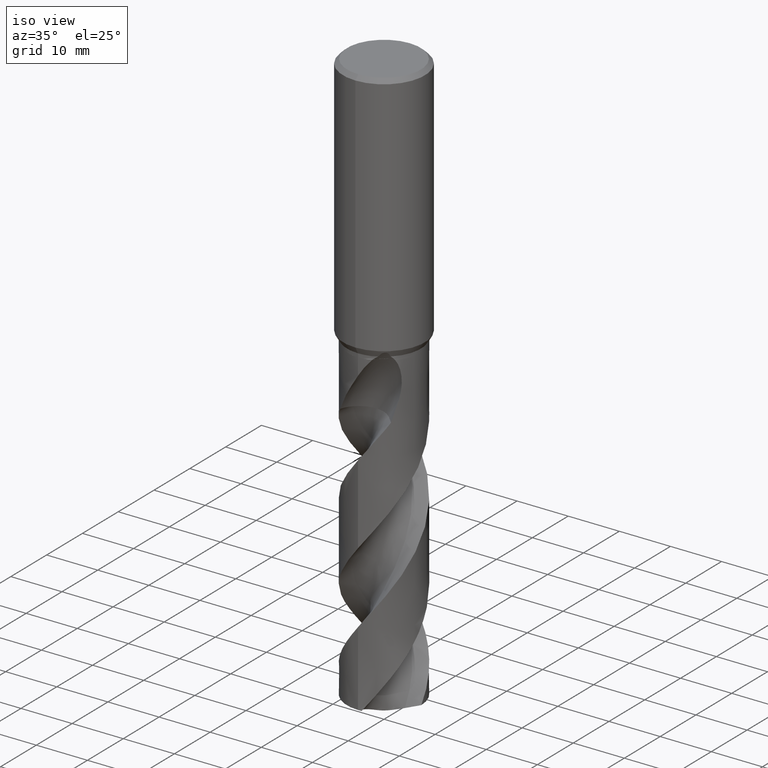
[diagram: clean part render]
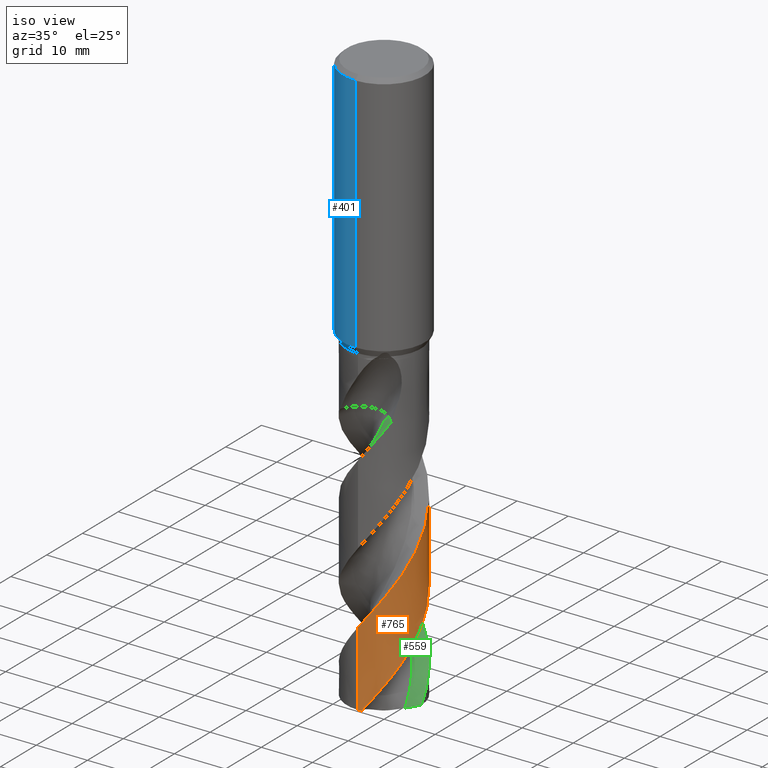
[diagram: same view with three faces highlighted in distinct colors, each labeled with its STEP entity id]
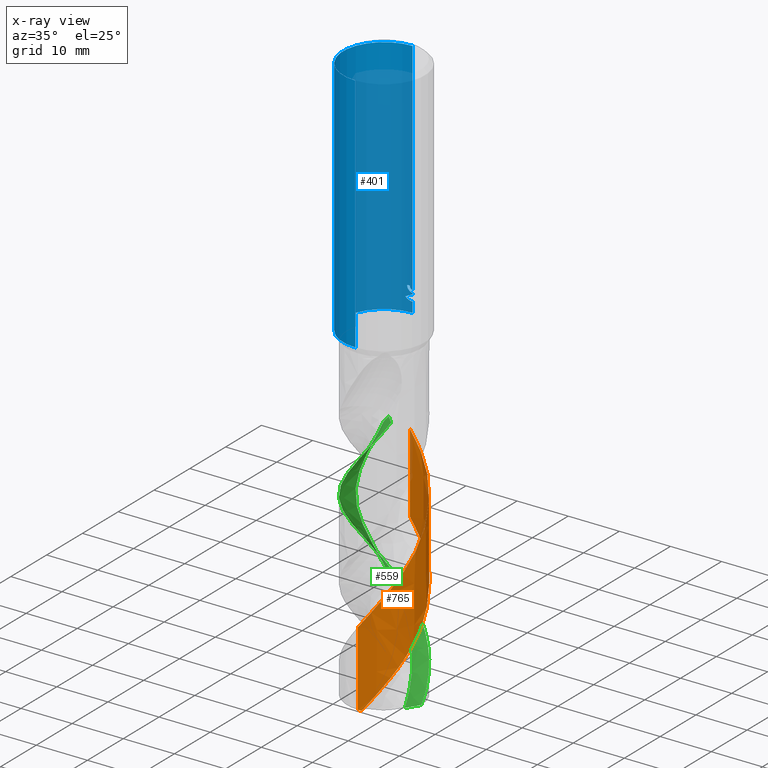
[diagram: x-ray of the same camera — body ghosted, the three highlighted faces saturated]
A machine part, iso view with three faces highlighted in distinct colors.
The next image is the same camera in x-ray (body ghosted, the three faces saturated) — at least one of them is partly hidden behind the body in this view.
Their STEP definitions:

[orange] entity #765 — the highlighted conical surface has half-angle 0 deg.
#339=VERTEX_POINT('',#877);
#363=VERTEX_POINT('',#903);
#389=EDGE_CURVE('',#339,#409,#932,.T.);
#409=VERTEX_POINT('',#954);
#473=EDGE_CURVE('',#721,#589,#1023,.T.);
#589=VERTEX_POINT('',#1143);
#597=EDGE_CURVE('',#339,#363,#1152,.T.);
#633=EDGE_CURVE('',#409,#589,#1190,.T.);
#709=EDGE_CURVE('',#721,#363,#1278,.T.);
#721=VERTEX_POINT('',#1291);
#765=ADVANCED_FACE('',(#1340),#1341,.T.);
#877=CARTESIAN_POINT('',(0.690855671745082,-7.21700896776619,-112.36121580157));
#903=CARTESIAN_POINT('',(2.27820117841889E-013,7.24995412114484,-83.7506039292155));
#932=CIRCLE('',#1912,7.25);
#954=CARTESIAN_POINT('',(8.92201552602258E-016,-7.25,-112.36121580157));
#1023=B_SPLINE_CURVE_WITH_KNOTS('',3,(#2204,#2205,#2206,#2207,#2208,#2209,#2210,#2211,#2212,#2213,#2214,#2215,#2216,#2217,#2218,#2219,#2220,#2221,#2222,#2223,#2224,#2225,#2226,#2227,#2228,#2229,#2230,#2231,#2232,#2233,#2234,#2235,#2236,#2237,#2238,#2239,#2240,#2241,#2242,#2243,#2244,#2245,#2246,#2247,#2248,#2249,#2250,#2251,#2252,#2253,#2254,#2255,#2256,#2257,#2258,#2259,#2260,#2261,#2262,#2263,#2264,#2265,#2266,#2267,#2268,#2269,#2270,#2271,#2272,#2273,#2274,#2275,#2276,#2277,#2278,#2279,#2280,#2281,#2282,#2283,#2284,#2285,#2286,#2287,#2288,#2289),.UNSPECIFIED.,.F.,.F.,(4,2,2,2,2,2,2,2,2,2,2,2,2,2,2,2,2,2,2,2,2,2,2,2,2,2,2,2,2,2,2,2,2,2,2,2,2,2,2,2,2,2,4),(0.0,0.210304086068038,0.313889300572054,1.17769250985621,1.45903104223533,1.63367837192866,1.79402820930286,2.00354779692082,2.24073834741856,3.21709693872684,4.03022999357826,4.85236997812291,9.74286510770527,11.5861094006077,13.4231701224091,15.2566048118957,16.1779645443521,17.0852041954248,20.37727008698,21.2853509247081,24.702049685947,25.6025506709767,29.2168676147197,29.2659692492197,32.0854973560678,33.0057548473173,33.9090215431491,37.5215579439481,37.6207092248995,40.4682156132015,42.3061179258814,44.1300999114018,45.0517586616111,46.8725099501984,48.7034915821564,49.6233584522628,50.4733182771852,53.6710115201527,54.8835445597027,57.0174875052557,60.2314967113286,61.8397313497389,63.4502532120235),.UNSPECIFIED.);
#1143=CARTESIAN_POINT('',(6.0398142667226E-014,-7.24997650128769,-97.7071331038101));
#1152=B_SPLINE_CURVE_WITH_KNOTS('',3,(#3632,#3633,#3634,#3635,#3636,#3637,#3638,#3639,#3640,#3641,#3642,#3643,#3644,#3645,#3646,#3647,#3648,#3649,#3650,#3651,#3652,#3653,#3654,#3655,#3656,#3657,#3658,#3659,#3660,#3661,#3662,#3663,#3664,#3665,#3666,#3667,#3668,#3669,#3670,#3671,#3672,#3673,#3674,#3675,#3676,#3677,#3678,#3679,#3680,#3681,#3682,#3683,#3684,#3685,#3686,#3687,#3688,#3689,#3690,#3691,#3692,#3693,#3694,#3695,#3696,#3697,#3698,#3699,#3700,#3701,#3702,#3703,#3704,#3705,#3706,#3707,#3708,#3709,#3710,#3711),.UNSPECIFIED.,.F.,.F.,(4,2,2,2,2,2,2,2,2,2,2,2,2,2,2,2,2,2,2,2,2,2,2,2,2,2,2,2,2,2,2,2,2,2,2,2,2,2,2,4),(0.0,1.89630091735271,3.54769438117396,6.23149635100796,7.9277649123938,8.87014856560747,10.1715284059933,12.8367731521679,14.1466410984459,17.7694263827033,18.2399507950682,22.108226263483,22.5791725981165,24.7011109531099,27.8436731671682,30.5580534895705,31.4112634065993,34.7687335778452,35.5468671292838,38.4004853594342,40.8946037696711,43.4027941907401,44.2312393576209,47.1084500815723,48.5084922544913,52.3117093416515,52.5165477494234,55.5510286134803,57.8097966749533,59.2349505615318,60.6003071453903,61.459676013462,62.8535724450805,63.1158260891668,63.1234531118705,63.2182455043556,63.3070749242383,63.4268241035185,63.6805968346564,63.9496781646283),.UNSPECIFIED.);
#1190=LINE('',#4429,#4430);
#1278=LINE('',#4794,#4795);
#1291=CARTESIAN_POINT('',(5.14588395460916E-011,7.24992918673921,-68.2012054276744));
#1340=FACE_OUTER_BOUND('',#5113,.T.);
#1341=CONICAL_SURFACE('',#5114,7.24995,1.60356078235992E-006);
#1912=AXIS2_PLACEMENT_3D('',#5435,#5436,#5437);
#2204=CARTESIAN_POINT('',(-5.03925244964702,5.21222023289111,-60.967));
#2205=CARTESIAN_POINT('',(-5.00978032259487,5.24071445280259,-61.0238654035077));
#2206=CARTESIAN_POINT('',(-4.98001545065386,5.26900855825968,-61.0807222525962));
#2207=CARTESIAN_POINT('',(-4.93508598126302,5.31099310713471,-61.1654883244664));
#2208=CARTESIAN_POINT('',(-4.92018318821538,5.3248025396834,-61.1934351608689));
#2209=CARTESIAN_POINT('',(-4.78018743706196,5.45343406677269,-61.4542667280388));
#2210=CARTESIAN_POINT('',(-4.65225499856575,5.56317035469051,-61.6796032584946));
#2211=CARTESIAN_POINT('',(-4.46955953417852,5.70855994882845,-61.9824310825085));
#2212=CARTESIAN_POINT('',(-4.42411606003495,5.74385585144123,-62.0563851175809));
#2213=CARTESIAN_POINT('',(-4.34931296940008,5.80052599153234,-62.1761990372448));
#2214=CARTESIAN_POINT('',(-4.32045246482374,5.8220552725498,-62.2219772066587));
#2215=CARTESIAN_POINT('',(-4.2646478975406,5.86303785207892,-62.3097502759366));
#2216=CARTESIAN_POINT('',(-4.23777427293628,5.8824918254398,-62.3516948411593));
#2217=CARTESIAN_POINT('',(-4.17539396939021,5.92699830811542,-62.4484376650187));
#2218=CARTESIAN_POINT('',(-4.13981832280978,5.95190152271035,-62.5031532105936));
#2219=CARTESIAN_POINT('',(-4.06347491906114,6.0043261945157,-62.6198908579395));
#2220=CARTESIAN_POINT('',(-4.02226880662331,6.03201518905053,-62.6824893348627));
#2221=CARTESIAN_POINT('',(-3.80808420708147,6.17271053085674,-63.0074907877998));
#2222=CARTESIAN_POINT('',(-3.6320579353278,6.2778116001873,-63.2719416592026));
#2223=CARTESIAN_POINT('',(-3.30413384336195,6.45544633741225,-63.7557151753485));
#2224=CARTESIAN_POINT('',(-3.15241749475409,6.53087416683658,-63.9762509355296));
#2225=CARTESIAN_POINT('',(-2.84233549253286,6.67171878412406,-64.4188480549434));
#2226=CARTESIAN_POINT('',(-2.683884558774,6.73702820156188,-64.6409738385749));
#2227=CARTESIAN_POINT('',(-1.56704520395329,7.15163767079486,-66.1854572976499));
#2228=CARTESIAN_POINT('',(-0.546381689224195,7.30093309813714,-67.4911087097356));
#2229=CARTESIAN_POINT('',(0.855287696597667,7.20956447343906,-69.3112709571276));
#2230=CARTESIAN_POINT('',(1.23645842734804,7.15406628411371,-69.8080358404676));
#2231=CARTESIAN_POINT('',(1.98532479976608,6.98333811173469,-70.8025191963202));
#2232=CARTESIAN_POINT('',(2.35159482375386,6.86864304471706,-71.2981473837041));
#2233=CARTESIAN_POINT('',(3.06154975723793,6.58290308765196,-72.2905676496827));
#2234=CARTESIAN_POINT('',(3.40449073148484,6.41228599405501,-72.7856486837778));
#2235=CARTESIAN_POINT('',(3.89733182311947,6.11632002389168,-73.5301170078809));
#2236=CARTESIAN_POINT('',(4.05819030991086,6.01079765511617,-73.7789329002379));
#2237=CARTESIAN_POINT('',(4.36878878446355,5.78888312935204,-74.2729975676904));
#2238=CARTESIAN_POINT('',(4.51845985283313,5.67282740328935,-74.5178979327166));
#2239=CARTESIAN_POINT('',(5.18930558515622,5.10925979910406,-75.6530310030177));
#2240=CARTESIAN_POINT('',(5.65000640212918,4.59472614938845,-76.5397428304614));
#2241=CARTESIAN_POINT('',(6.13659951226946,3.86520175119183,-77.6748695886487));
#2242=CARTESIAN_POINT('',(6.23553774514878,3.70346788405186,-77.9200731453436));
#2243=CARTESIAN_POINT('',(6.67594841052528,2.91577682718396,-79.0894224917502));
#2244=CARTESIAN_POINT('',(6.93034809408869,2.24523389448378,-80.0092469538378));
#2245=CARTESIAN_POINT('',(7.12286841228285,1.36450756422604,-81.1762187256363));
#2246=CARTESIAN_POINT('',(7.15584647494383,1.1793868406203,-81.4194903322334));
#2247=CARTESIAN_POINT('',(7.28492150888956,0.246132877337394,-82.6405280723853));
#2248=CARTESIAN_POINT('',(7.27106786706407,-0.512889161394252,-83.6123523335919));
#2249=CARTESIAN_POINT('',(7.13851407268235,-1.26632402727727,-84.6027592459127));
#2250=CARTESIAN_POINT('',(7.13671593143104,-1.27641910978059,-84.6160345813648));
#2251=CARTESIAN_POINT('',(7.03041107444194,-1.86598531294295,-85.3916921490346));
#2252=CARTESIAN_POINT('',(6.85568297125118,-2.43069692060217,-86.1532991426464));
#2253=CARTESIAN_POINT('',(6.5359232574471,-3.14333642835609,-87.1647623290453));
#2254=CARTESIAN_POINT('',(6.4502879727046,-3.31551879091895,-87.4134849070393));
#2255=CARTESIAN_POINT('',(6.26721580806802,-3.64959519363695,-87.906603303182));
#2256=CARTESIAN_POINT('',(6.17014470144677,-3.81140552940182,-88.1507065770188));
#2257=CARTESIAN_POINT('',(5.65400065581019,-4.60033106273446,-89.3725130694309));
#2258=CARTESIAN_POINT('',(5.14493107937477,-5.16345540468369,-90.3443733442808));
#2259=CARTESIAN_POINT('',(4.54191611932174,-5.65096792276379,-91.3482591836186));
#2260=CARTESIAN_POINT('',(4.52575155468365,-5.66392213874879,-91.3750770243107));
#2261=CARTESIAN_POINT('',(4.04372314910618,-6.04683666267322,-92.1721905807555));
#2262=CARTESIAN_POINT('',(3.53401619677952,-6.35820744518144,-92.9415852553302));
#2263=CARTESIAN_POINT('',(2.64224387598876,-6.76225630307014,-94.2093158161248));
#2264=CARTESIAN_POINT('',(2.28051350208002,-6.89265398604684,-94.7051447788316));
#2265=CARTESIAN_POINT('',(1.54276949694519,-7.09415835730621,-95.6963397127303));
#2266=CARTESIAN_POINT('',(1.16788603193666,-7.16542915734826,-96.1897309556141));
#2267=CARTESIAN_POINT('',(0.597679973497552,-7.22786246783568,-96.9328194624062));
#2268=CARTESIAN_POINT('',(0.405472963351331,-7.24119099330561,-97.1820981628603));
#2269=CARTESIAN_POINT('',(-0.167468378587188,-7.25802587988113,-97.9241156323138));
#2270=CARTESIAN_POINT('',(-0.547972859381524,-7.23923144685861,-98.4158013635568));
#2271=CARTESIAN_POINT('',(-1.30432438387185,-7.14192804911449,-99.4044314520633));
#2272=CARTESIAN_POINT('',(-1.67924894926922,-7.06319678615775,-99.8995024371183));
#2273=CARTESIAN_POINT('',(-2.23075354089554,-6.90093623152792,-100.643932486617));
#2274=CARTESIAN_POINT('',(-2.41296497150638,-6.83935718934259,-100.892694828104));
#2275=CARTESIAN_POINT('',(-2.75845919443946,-6.70706452478027,-101.371566670569));
#2276=CARTESIAN_POINT('',(-2.9219267451921,-6.63747874904157,-101.601377713337));
#2277=CARTESIAN_POINT('',(-3.68728840096915,-6.27793405405267,-102.697129486209));
#2278=CARTESIAN_POINT('',(-4.25006538415194,-5.9115288417428,-103.559762911374));
#2279=CARTESIAN_POINT('',(-4.94611725419794,-5.30683611643249,-104.7533410491));
#2280=CARTESIAN_POINT('',(-5.12855922103803,-5.13072926671643,-105.081179359573));
#2281=CARTESIAN_POINT('',(-5.60547262317071,-4.61950056443287,-105.987326372979));
#2282=CARTESIAN_POINT('',(-5.87897982743365,-4.2660276462736,-106.564302659856));
#2283=CARTESIAN_POINT('',(-6.47880726490072,-3.32249083881919,-108.011904827705));
#2284=CARTESIAN_POINT('',(-6.75855510992129,-2.70831588518962,-108.877780710645));
#2285=CARTESIAN_POINT('',(-7.0454077725077,-1.74284451162384,-110.183842850782));
#2286=CARTESIAN_POINT('',(-7.1186281028942,-1.4144416542381,-110.618740213666));
#2287=CARTESIAN_POINT('',(-7.21905796830596,-0.749036288058498,-111.489988637319));
#2288=CARTESIAN_POINT('',(-7.24605550667662,-0.412987986016026,-111.925291151945));
#2289=CARTESIAN_POINT('',(-7.24959877841542,-0.0762728785188047,-112.36121580157));
#3632=CARTESIAN_POINT('',(0.690855671745028,-7.21700896776624,-112.36121580157));
#3633=CARTESIAN_POINT('',(1.07478093569116,-7.18025651678191,-111.860414997235));
#3634=CARTESIAN_POINT('',(1.45582040271712,-7.11285685876501,-111.359141338366));
#3635=CARTESIAN_POINT('',(2.15615669761477,-6.93014784611491,-110.423124138476));
#3636=CARTESIAN_POINT('',(2.4759478541789,-6.82244970830412,-109.989097614131));
#3637=CARTESIAN_POINT('',(3.29308692225439,-6.48215100091732,-108.846004808539));
#3638=CARTESIAN_POINT('',(3.77262458678795,-6.21516518865268,-108.134728070527));
#3639=CARTESIAN_POINT('',(4.49801705685512,-5.69644533401351,-106.978803344006));
#3640=CARTESIAN_POINT('',(4.76442916645895,-5.47560226621703,-106.532991371262));
#3641=CARTESIAN_POINT('',(5.1530445939215,-5.10347008482161,-105.83737280746));
#3642=CARTESIAN_POINT('',(5.28636911378245,-4.96522240671631,-105.589113167569));
#3643=CARTESIAN_POINT('',(5.59010691004947,-4.62419628046977,-104.996939999945));
#3644=CARTESIAN_POINT('',(5.75513646648046,-4.4171118468074,-104.652303309101));
#3645=CARTESIAN_POINT('',(6.22295516952847,-3.75917126416486,-103.60537103677));
#3646=CARTESIAN_POINT('',(6.48674761482229,-3.28313746237946,-102.908563950209));
#3647=CARTESIAN_POINT('',(6.79737293482078,-2.53557386105355,-101.860237746202));
#3648=CARTESIAN_POINT('',(6.88589691630531,-2.28414579353494,-101.513554753141));
#3649=CARTESIAN_POINT('',(7.16601775934855,-1.32319499015716,-100.213263554258));
#3650=CARTESIAN_POINT('',(7.26311610141532,-0.590705523703008,-99.2745360403363));
#3651=CARTESIAN_POINT('',(7.24666136239555,0.239106487728957,-98.1960208461325));
#3652=CARTESIAN_POINT('',(7.2428925136278,0.334301027710691,-98.0719398247871));
#3653=CARTESIAN_POINT('',(7.1908408451487,1.21150456469685,-96.9293523965711));
#3654=CARTESIAN_POINT('',(7.01805756006925,1.98043699373308,-95.9302592937169));
#3655=CARTESIAN_POINT('',(6.69010901274485,2.79528547041986,-94.7885434768218));
#3656=CARTESIAN_POINT('',(6.65282523468455,2.88289650458178,-94.6645266841801));
#3657=CARTESIAN_POINT('',(6.437828637473,3.36168400096509,-93.9822206494445));
#3658=CARTESIAN_POINT('',(6.22712295739907,3.73775636691847,-93.4273355969169));
#3659=CARTESIAN_POINT('',(5.6232597790435,4.6204487999856,-92.0453979389771));
#3660=CARTESIAN_POINT('',(5.19503382259543,5.09709079626862,-91.2180349612399));
#3661=CARTESIAN_POINT('',(4.29148048320745,5.86929232007242,-89.6793988444049));
#3662=CARTESIAN_POINT('',(3.83372030502354,6.17791498202587,-88.9728785879474));
#3663=CARTESIAN_POINT('',(3.1928731175095,6.51132420577489,-88.0347100434697));
#3664=CARTESIAN_POINT('',(3.03696374488938,6.58548913169519,-87.8098419320283));
#3665=CARTESIAN_POINT('',(2.25391059705294,6.92420306512297,-86.7021158248767));
#3666=CARTESIAN_POINT('',(1.59486847771545,7.10498248787212,-85.8317864607844));
#3667=CARTESIAN_POINT('',(0.763957388806669,7.21131537341783,-84.7444507671175));
#3668=CARTESIAN_POINT('',(0.607249805635352,7.22619315507974,-84.5394309320998));
#3669=CARTESIAN_POINT('',(-0.125840730277471,7.27180018087809,-83.5850115651822));
#3670=CARTESIAN_POINT('',(-0.704597710125536,7.23877852633658,-82.8431795086216));
#3671=CARTESIAN_POINT('',(-1.77168282317266,7.04829723905724,-81.4405107590108));
#3672=CARTESIAN_POINT('',(-2.25838938711356,6.90775310230232,-80.7832920817758));
#3673=CARTESIAN_POINT('',(-3.19794105148455,6.52636273497545,-79.4712683235558));
#3674=CARTESIAN_POINT('',(-3.64711919127317,6.28630058782807,-78.8185240486239));
#3675=CARTESIAN_POINT('',(-4.2057658645795,5.90773282181933,-77.9423907441475));
#3676=CARTESIAN_POINT('',(-4.34099474660977,5.80908898766683,-77.7243798025566));
#3677=CARTESIAN_POINT('',(-4.93063713827564,5.34685828293841,-76.751333945019));
#3678=CARTESIAN_POINT('',(-5.34387673051808,4.93397253843565,-76.0040802566229));
#3679=CARTESIAN_POINT('',(-5.87856195244498,4.25258880087396,-74.8826384412675));
#3680=CARTESIAN_POINT('',(-6.0400841547677,4.01979576231583,-74.5141886239056));
#3681=CARTESIAN_POINT('',(-6.58713542907161,3.12406379025702,-73.1505951565345));
#3682=CARTESIAN_POINT('',(-6.88030150801894,2.4105161269863,-72.1725184561015));
#3683=CARTESIAN_POINT('',(-7.06576053134567,1.62427636030065,-71.1227732596202));
#3684=CARTESIAN_POINT('',(-7.07488614488841,1.58405455596913,-71.06912827708));
#3685=CARTESIAN_POINT('',(-7.21384039848491,0.946434382724993,-70.2208891077177));
#3686=CARTESIAN_POINT('',(-7.26812813017476,0.334149460930205,-69.4321594515262));
#3687=CARTESIAN_POINT('',(-7.22705226603809,-0.734460272692811,-68.0485051301318));
#3688=CARTESIAN_POINT('',(-7.16653360183727,-1.18744106962642,-67.4564587233165));
#3689=CARTESIAN_POINT('',(-6.9992329708829,-1.91177404393148,-66.4930000927242));
#3690=CARTESIAN_POINT('',(-6.91778744270278,-2.18832839652102,-66.1202593192523));
#3691=CARTESIAN_POINT('',(-6.72625024543268,-2.71942540356861,-65.3916585568651));
#3692=CARTESIAN_POINT('',(-6.61759920473345,-2.97416089349818,-65.0363240044165));
#3693=CARTESIAN_POINT('',(-6.41681938173198,-3.37879577051982,-64.4567452236287));
#3694=CARTESIAN_POINT('',(-6.33367454980682,-3.53221788832868,-64.2342557528058));
#3695=CARTESIAN_POINT('',(-6.10061571418525,-3.92739110918271,-63.6363355773941));
#3696=CARTESIAN_POINT('',(-5.94605965300424,-4.1566702914547,-63.2653284074083));
#3697=CARTESIAN_POINT('',(-5.75361245838756,-4.41133159628401,-62.812091550147));
#3698=CARTESIAN_POINT('',(-5.72293982998552,-4.45104349707937,-62.7401040004496));
#3699=CARTESIAN_POINT('',(-5.69118533867852,-4.49129781304277,-62.6657253163084));
#3700=CARTESIAN_POINT('',(-5.68938982786555,-4.49357361177471,-62.6615167335701));
#3701=CARTESIAN_POINT('',(-5.65606270435072,-4.53572160099142,-62.5837946869642));
#3702=CARTESIAN_POINT('',(-5.6241610839234,-4.57524328797141,-62.5127142380929));
#3703=CARTESIAN_POINT('',(-5.56010691791475,-4.65283979535652,-62.3764522044621));
#3704=CARTESIAN_POINT('',(-5.52815121214044,-4.69078232845219,-62.3112980233945));
#3705=CARTESIAN_POINT('',(-5.45067890898868,-4.78080345039633,-62.1599320080411));
#3706=CARTESIAN_POINT('',(-5.40440625495664,-4.83309815367777,-62.0744656438664));
#3707=CARTESIAN_POINT('',(-5.25407895513992,-4.99789415024617,-61.8118953735858));
#3708=CARTESIAN_POINT('',(-5.14395807510183,-5.11157753911808,-61.6404099361161));
#3709=CARTESIAN_POINT('',(-4.89898363354335,-5.34713593839097,-61.2983699341276));
#3710=CARTESIAN_POINT('',(-4.76403948631274,-5.46811458029344,-61.1298934979058));
#3711=CARTESIAN_POINT('',(-4.61977415179415,-5.58739579713552,-60.967));
#4429=CARTESIAN_POINT('',(8.92195429570489E-016,-7.24995,-81.180607900785));
#4430=VECTOR('',#5639,1.0);
#4794=CARTESIAN_POINT('',(-8.8347153740842E-016,7.24995,-81.180607900785));
#4795=VECTOR('',#5782,1.0);
#5113=EDGE_LOOP('',(#5854,#5855,#5856,#5857,#5858));
#5114=AXIS2_PLACEMENT_3D('',#5859,#5860,#5861);
#5435=CARTESIAN_POINT('',(0.0,0.0,-112.36121580157));
#5436=DIRECTION('',(0.0,0.0,-1.0));
#5437=DIRECTION('',(0.0,1.0,0.0));
#5639=DIRECTION('',(-1.96373072281749E-022,1.60356078235923E-006,0.999999999998714));
#5782=DIRECTION('',(-1.96373072281749E-022,1.60356078235923E-006,-0.999999999998714));
#5854=ORIENTED_EDGE('',*,*,#709,.F.);
#5855=ORIENTED_EDGE('',*,*,#473,.T.);
#5856=ORIENTED_EDGE('',*,*,#633,.F.);
#5857=ORIENTED_EDGE('',*,*,#389,.F.);
#5858=ORIENTED_EDGE('',*,*,#597,.T.);
#5859=CARTESIAN_POINT('',(0.0,0.0,-81.180607900785));
#5860=DIRECTION('',(0.0,-0.0,-1.0));
#5861=DIRECTION('',(0.0,1.0,0.0));

[blue] entity #401 — the highlighted cylindrical surface (partial cylindrical patch) has radius 8 mm, axis along (-0, -0, 1).
#299=EDGE_CURVE('',#537,#451,#830,.T.);
#335=EDGE_CURVE('',#557,#739,#873,.T.);
#341=EDGE_CURVE('',#531,#443,#879,.T.);
#347=VERTEX_POINT('',#885);
#353=EDGE_CURVE('',#451,#557,#892,.T.);
#375=EDGE_CURVE('',#779,#531,#915,.T.);
#401=ADVANCED_FACE('',(#945),#946,.T.);
#423=VERTEX_POINT('',#970);
#433=VERTEX_POINT('',#982);
#443=VERTEX_POINT('',#992);
#451=VERTEX_POINT('',#1001);
#459=EDGE_CURVE('',#467,#769,#1009,.T.);
#467=VERTEX_POINT('',#1017);
#499=EDGE_CURVE('',#443,#423,#1049,.T.);
#517=EDGE_CURVE('',#739,#779,#1068,.T.);
#531=VERTEX_POINT('',#1082);
#537=VERTEX_POINT('',#1088);
#555=EDGE_CURVE('',#769,#347,#1106,.T.);
#557=VERTEX_POINT('',#1108);
#611=EDGE_CURVE('',#537,#433,#1167,.T.);
#613=EDGE_CURVE('',#347,#433,#1169,.T.);
#739=VERTEX_POINT('',#1311);
#741=EDGE_CURVE('',#423,#467,#1313,.T.);
#769=VERTEX_POINT('',#1345);
#779=VERTEX_POINT('',#1356);
#830=LINE('',#1404,#1405);
#873=LINE('',#1779,#1780);
#879=CIRCLE('',#1788,8.0);
#885=CARTESIAN_POINT('',(-7.24729156774638E-017,8.0,-46.0310253601033));
#892=CIRCLE('',#1818,8.0);
#915=B_SPLINE_CURVE_WITH_KNOTS('',3,(#1853,#1854,#1855,#1856,#1857,#1858,#1859,#1860,#1861,#1862,#1863,#1864,#1865,#1866,#1867,#1868,#1869,#1870,#1871,#1872,#1873,#1874,#1875,#1876,#1877,#1878,#1879),.UNSPECIFIED.,.F.,.F.,(4,2,3,2,2,2,2,2,2,2,2,2,4),(-0.5419285326464,-0.2709642663232,0.0,0.2709642663232,0.5419285326464,0.813116082096196,1.08430363154599,1.35512009221967,1.62593655289334,1.89686258809883,2.16778862330431,2.43871465850979,2.70964069371527),.UNSPECIFIED.);
#945=FACE_OUTER_BOUND('',#1928,.T.);
#946=CYLINDRICAL_SURFACE('',#1929,8.0);
#970=CARTESIAN_POINT('',(-1.59110438709803E-015,8.0,-44.5000801551882));
#982=CARTESIAN_POINT('',(0.0,8.0,-48.0));
#992=CARTESIAN_POINT('',(-1.0350734039088,7.93275633361574,-43.3171221986971));
#1001=CARTESIAN_POINT('',(9.79685083057902E-016,-8.0,-0.799999999999997));
#1009=ELLIPSE('',#2063,8.91942745634288,8.0);
#1017=CARTESIAN_POINT('',(1.83843752834743E-015,8.0,-44.7128911336578));
#1049=B_SPLINE_CURVE_WITH_KNOTS('',3,(#2371,#2372,#2373,#2374,#2375,#2376,#2377,#2378,#2379,#2380,#2381,#2382,#2383,#2384),.UNSPECIFIED.,.F.,.F.,(4,2,2,2,2,2,4),(3.12481205259249,3.57110974231005,4.01740743202762,4.46370512174518,4.90965496251245,5.35560480327972,5.80250994576287),.UNSPECIFIED.);
#1068=B_SPLINE_CURVE_WITH_KNOTS('',3,(#3034,#3035,#3036,#3037,#3038,#3039,#3040,#3041,#3042,#3043,#3044,#3045,#3046,#3047,#3048,#3049,#3050,#3051,#3052,#3053,#3054,#3055,#3056,#3057,#3058,#3059,#3060),.UNSPECIFIED.,.F.,.F.,(4,2,3,2,2,2,2,2,2,2,2,2,4),(-0.5419285326464,-0.2709642663232,0.0,0.2709642663232,0.5419285326464,0.813116082096196,1.08430363154599,1.35512009221967,1.62593655289334,1.89686258809883,2.16778862330431,2.43871465850979,2.70964069371527),.UNSPECIFIED.);
#1082=CARTESIAN_POINT('',(-0.562333990228013,7.98021180692807,-43.3171221986971));
#1088=CARTESIAN_POINT('',(9.79685083057902E-016,-8.0,-48.0));
#1106=B_SPLINE_CURVE_WITH_KNOTS('',3,(#3162,#3163,#3164,#3165,#3166,#3167,#3168,#3169,#3170,#3171,#3172,#3173,#3174,#3175,#3176,#3177),.UNSPECIFIED.,.F.,.F.,(4,2,2,2,2,2,2,4),(5.84590460773513,6.15359942935952,6.46135491269572,6.76911039603191,7.0768658793681,7.3846213627043,7.69220202210762,7.99978268151095),.UNSPECIFIED.);
#1108=CARTESIAN_POINT('',(0.0,8.0,-0.799999999999997));
#1167=CIRCLE('',#4374,8.0);
#1169=LINE('',#4377,#4378);
#1311=CARTESIAN_POINT('',(-9.11185746623598E-016,8.0,-44.0232688117743));
#1313=LINE('',#4980,#4981);
#1345=CARTESIAN_POINT('',(-1.337052752443,7.88747677886817,-45.3720803908795));
#1356=CARTESIAN_POINT('',(-0.486378944383043,7.98520103206305,-43.6432837483006));
#1404=CARTESIAN_POINT('',(9.79685083057902E-016,-8.0,-24.4));
#1405=VECTOR('',#5278,1.0);
#1779=CARTESIAN_POINT('',(-9.79685083057902E-016,8.0,-24.4));
#1780=VECTOR('',#5348,1.0);
#1788=AXIS2_PLACEMENT_3D('',#5352,#5353,#5354);
#1818=AXIS2_PLACEMENT_3D('',#5368,#5369,#5370);
#1853=CARTESIAN_POINT('',(0.664954599443552,7.97231681386778,-42.8134280485152));
#1854=CARTESIAN_POINT('',(0.728697309144575,7.96700016514617,-42.8771976298052));
#1855=CARTESIAN_POINT('',(0.783984970005959,7.96157817669746,-42.9579676288293));
#1856=CARTESIAN_POINT('',(0.857338729083105,7.95401344016708,-43.1350264032587));
#1857=CARTESIAN_POINT('',(0.875400981188567,7.9519603320272,-43.2313205904791));
#1858=CARTESIAN_POINT('',(0.875400981188567,7.9519603320272,-43.3216420125868));
#1859=CARTESIAN_POINT('',(0.875400981188567,7.9519603320272,-43.4119634346945));
#1860=CARTESIAN_POINT('',(0.857338729083105,7.95401344016708,-43.5082576219149));
#1861=CARTESIAN_POINT('',(0.783984970005959,7.96157817669746,-43.6853163963443));
#1862=CARTESIAN_POINT('',(0.728697309144575,7.96700016514617,-43.7660863953684));
#1863=CARTESIAN_POINT('',(0.601159363733413,7.97763784367611,-43.8936781061006));
#1864=CARTESIAN_POINT('',(0.520362377010846,7.9835511616299,-43.9490134763627));
#1865=CARTESIAN_POINT('',(0.343238271730281,7.99312539889087,-44.0224346019683));
#1866=CARTESIAN_POINT('',(0.246904936469423,7.99669990446128,-44.0405166027747));
#1867=CARTESIAN_POINT('',(0.0662715181116066,8.00023481827847,-44.0405166027747));
#1868=CARTESIAN_POINT('',(-0.0300046983202698,8.00043385807034,-44.0224788314126));
#1869=CARTESIAN_POINT('',(-0.207097636225057,7.99780924806332,-43.9491319808916));
#1870=CARTESIAN_POINT('',(-0.287916228308942,7.99507247117758,-43.8938243353674));
#1871=CARTESIAN_POINT('',(-0.415561608099308,7.98945501431132,-43.7662134499861));
#1872=CARTESIAN_POINT('',(-0.47089751346449,7.98621359896913,-43.6853869033816));
#1873=CARTESIAN_POINT('',(-0.544291654106699,7.9815473885346,-43.5082570304582));
#1874=CARTESIAN_POINT('',(-0.562348199187247,7.98021080566615,-43.4119506909886));
#1875=CARTESIAN_POINT('',(-0.562348199187247,7.98021080566615,-43.231333334185));
#1876=CARTESIAN_POINT('',(-0.544291654106699,7.9815473885346,-43.1350269947154));
#1877=CARTESIAN_POINT('',(-0.47089751346449,7.98621359896913,-42.9578971217919));
#1878=CARTESIAN_POINT('',(-0.415561608099308,7.98945501431132,-42.8770705751875));
#1879=CARTESIAN_POINT('',(-0.351726009227227,7.99226431084665,-42.8132522270084));
#1928=EDGE_LOOP('',(#5459,#5460,#5461,#5462,#5463,#5464,#5465,#5466,#5467,#5468,#5469,#5470));
#1929=AXIS2_PLACEMENT_3D('',#5471,#5472,#5473);
#2063=AXIS2_PLACEMENT_3D('',#5530,#5531,#5532);
#2371=CARTESIAN_POINT('',(-0.944913575683947,7.94400014693405,-42.8732243363802));
#2372=CARTESIAN_POINT('',(-1.00533761441092,7.93681290047907,-43.0189735840866));
#2373=CARTESIAN_POINT('',(-1.03510901790186,7.93275168658759,-43.1775359641603));
#2374=CARTESIAN_POINT('',(-1.03510901790186,7.93275168658759,-43.4750677573053));
#2375=CARTESIAN_POINT('',(-1.00533761441092,7.93681290047907,-43.633630137379));
#2376=CARTESIAN_POINT('',(-0.884489536956978,7.95118739338903,-43.9251286327918));
#2377=CARTESIAN_POINT('',(-0.793422036282065,7.96125577113215,-44.0580805760962));
#2378=CARTESIAN_POINT('',(-0.583459122055651,7.97939033505077,-44.2679445706327));
#2379=CARTESIAN_POINT('',(-0.450537469697416,7.98863404330231,-44.3589298612103));
#2380=CARTESIAN_POINT('',(-0.15914754302441,7.99974561772846,-44.4796463278531));
#2381=CARTESIAN_POINT('',(-0.00066677009490626,8.00138090345271,-44.5093686300866));
#2382=CARTESIAN_POINT('',(0.296900652438527,7.99587653613211,-44.5093686300866));
#2383=CARTESIAN_POINT('',(0.455528663688589,7.98835734013009,-44.4795323205785));
#2384=CARTESIAN_POINT('',(0.601263712829537,7.9773731232552,-44.4190784555264));
#3034=CARTESIAN_POINT('',(0.664954599443552,7.97231681386778,-42.8134280485152));
#3035=CARTESIAN_POINT('',(0.728697309144575,7.96700016514617,-42.8771976298052));
#3036=CARTESIAN_POINT('',(0.783984970005959,7.96157817669746,-42.9579676288293));
#3037=CARTESIAN_POINT('',(0.857338729083105,7.95401344016708,-43.1350264032587));
#3038=CARTESIAN_POINT('',(0.875400981188567,7.9519603320272,-43.2313205904791));
#3039=CARTESIAN_POINT('',(0.875400981188567,7.9519603320272,-43.3216420125868));
#3040=CARTESIAN_POINT('',(0.875400981188567,7.9519603320272,-43.4119634346945));
#3041=CARTESIAN_POINT('',(0.857338729083105,7.95401344016708,-43.5082576219149));
#3042=CARTESIAN_POINT('',(0.783984970005959,7.96157817669746,-43.6853163963443));
#3043=CARTESIAN_POINT('',(0.728697309144575,7.96700016514617,-43.7660863953684));
#3044=CARTESIAN_POINT('',(0.601159363733413,7.97763784367611,-43.8936781061006));
#3045=CARTESIAN_POINT('',(0.520362377010846,7.9835511616299,-43.9490134763627));
#3046=CARTESIAN_POINT('',(0.343238271730281,7.99312539889087,-44.0224346019683));
#3047=CARTESIAN_POINT('',(0.246904936469423,7.99669990446128,-44.0405166027747));
#3048=CARTESIAN_POINT('',(0.0662715181116066,8.00023481827847,-44.0405166027747));
#3049=CARTESIAN_POINT('',(-0.0300046983202698,8.00043385807034,-44.0224788314126));
#3050=CARTESIAN_POINT('',(-0.207097636225057,7.99780924806332,-43.9491319808916));
#3051=CARTESIAN_POINT('',(-0.287916228308942,7.99507247117758,-43.8938243353674));
#3052=CARTESIAN_POINT('',(-0.415561608099308,7.98945501431132,-43.7662134499861));
#3053=CARTESIAN_POINT('',(-0.47089751346449,7.98621359896913,-43.6853869033816));
#3054=CARTESIAN_POINT('',(-0.544291654106699,7.9815473885346,-43.5082570304582));
#3055=CARTESIAN_POINT('',(-0.562348199187247,7.98021080566615,-43.4119506909886));
#3056=CARTESIAN_POINT('',(-0.562348199187247,7.98021080566615,-43.231333334185));
#3057=CARTESIAN_POINT('',(-0.544291654106699,7.9815473885346,-43.1350269947154));
#3058=CARTESIAN_POINT('',(-0.47089751346449,7.98621359896913,-42.9578971217919));
#3059=CARTESIAN_POINT('',(-0.415561608099308,7.98945501431132,-42.8770705751875));
#3060=CARTESIAN_POINT('',(-0.351726009227227,7.99226431084665,-42.8132522270084));
#3162=CARTESIAN_POINT('',(-1.37965989409101,7.88013569531876,-45.3117516854175));
#3163=CARTESIAN_POINT('',(-1.3199289256702,7.89059343674534,-45.4005322669916));
#3164=CARTESIAN_POINT('',(-1.25220482221876,7.90172765643501,-45.4820341223787));
#3165=CARTESIAN_POINT('',(-1.107952172922,7.92324182089716,-45.6263077447315));
#3166=CARTESIAN_POINT('',(-1.02644372997692,7.93438131532357,-45.694054819207));
#3167=CARTESIAN_POINT('',(-0.848862462231446,7.95533947157086,-45.8135583581366));
#3168=CARTESIAN_POINT('',(-0.752792760365746,7.96513819479128,-45.8653229590247));
#3169=CARTESIAN_POINT('',(-0.552233007873722,7.9815513596031,-45.9485362190328));
#3170=CARTESIAN_POINT('',(-0.447578035759424,7.98816541907638,-45.9800508802037));
#3171=CARTESIAN_POINT('',(-0.236935963609582,7.99718539298489,-46.0214239066938));
#3172=CARTESIAN_POINT('',(-0.130946685762249,7.99958603183741,-46.0312723335086));
#3173=CARTESIAN_POINT('',(0.074164072792245,8.00031320966596,-46.0312723335086));
#3174=CARTESIAN_POINT('',(0.180109755406485,7.99866619075415,-46.0214348948015));
#3175=CARTESIAN_POINT('',(0.390692067401577,7.99114885755329,-45.9800916357112));
#3176=CARTESIAN_POINT('',(0.495330794510019,7.98528384147368,-45.9485955375336));
#3177=CARTESIAN_POINT('',(0.595603341302621,7.97779773244654,-45.9070064177945));
#4374=AXIS2_PLACEMENT_3D('',#5624,#5625,#5626);
#4377=CARTESIAN_POINT('',(-9.79685083057902E-016,8.0,-24.4));
#4378=VECTOR('',#5627,1.0);
#4980=CARTESIAN_POINT('',(-9.79685083057902E-016,8.0,-24.4));
#4981=VECTOR('',#5812,1.0);
#5278=DIRECTION('',(-0.0,-0.0,1.0));
#5348=DIRECTION('',(0.0,0.0,-1.0));
#5352=CARTESIAN_POINT('',(0.0,0.0,-43.3171221986971));
#5353=DIRECTION('',(0.0,-0.0,1.0));
#5354=DIRECTION('',(0.0,1.0,0.0));
#5368=CARTESIAN_POINT('',(0.0,0.0,-0.799999999999997));
#5369=DIRECTION('',(0.0,0.0,-1.0));
#5370=DIRECTION('',(0.0,1.0,0.0));
#5459=ORIENTED_EDGE('',*,*,#335,.T.);
#5460=ORIENTED_EDGE('',*,*,#517,.T.);
#5461=ORIENTED_EDGE('',*,*,#375,.T.);
#5462=ORIENTED_EDGE('',*,*,#341,.T.);
#5463=ORIENTED_EDGE('',*,*,#499,.T.);
#5464=ORIENTED_EDGE('',*,*,#741,.T.);
#5465=ORIENTED_EDGE('',*,*,#459,.T.);
#5466=ORIENTED_EDGE('',*,*,#555,.T.);
#5467=ORIENTED_EDGE('',*,*,#613,.T.);
#5468=ORIENTED_EDGE('',*,*,#611,.F.);
#5469=ORIENTED_EDGE('',*,*,#299,.T.);
#5470=ORIENTED_EDGE('',*,*,#353,.T.);
#5471=CARTESIAN_POINT('',(0.0,0.0,-24.4));
#5472=DIRECTION('',(-0.0,-0.0,1.0));
#5473=DIRECTION('',(0.0,1.0,0.0));
#5530=CARTESIAN_POINT('',(0.0,0.0,-44.7128911336578));
#5531=DIRECTION('',(-0.442195774284071,0.0,0.896918556617774));
#5532=DIRECTION('',(0.896918556617774,-0.0,0.442195774284071));
#5624=CARTESIAN_POINT('',(0.0,0.0,-48.0));
#5625=DIRECTION('',(0.0,0.0,-1.0));
#5626=DIRECTION('',(0.0,1.0,0.0));
#5627=DIRECTION('',(0.0,0.0,-1.0));
#5812=DIRECTION('',(0.0,0.0,-1.0));

[green] entity #559 — the highlighted face is a freeform B-spline surface patch.
#301=EDGE_CURVE('',#735,#381,#832,.T.);
#311=VERTEX_POINT('',#843);
#381=VERTEX_POINT('',#922);
#549=VERTEX_POINT('',#1100);
#559=ADVANCED_FACE('',(#1110),#1111,.F.);
#575=VERTEX_POINT('',#1128);
#601=EDGE_CURVE('',#719,#311,#1156,.T.);
#657=EDGE_CURVE('',#549,#311,#1218,.T.);
#711=EDGE_CURVE('',#575,#719,#1280,.T.);
#719=VERTEX_POINT('',#1289);
#735=VERTEX_POINT('',#1307);
#747=EDGE_CURVE('',#549,#735,#1320,.T.);
#753=EDGE_CURVE('',#381,#575,#1326,.T.);
#832=B_SPLINE_CURVE_WITH_KNOTS('',3,(#1408,#1409,#1410,#1411,#1412,#1413,#1414,#1415,#1416,#1417,#1418,#1419,#1420,#1421,#1422,#1423,#1424,#1425,#1426,#1427,#1428,#1429,#1430,#1431,#1432,#1433,#1434,#1435,#1436,#1437,#1438,#1439,#1440,#1441,#1442,#1443,#1444,#1445,#1446,#1447,#1448,#1449,#1450,#1451,#1452,#1453,#1454,#1455,#1456,#1457,#1458,#1459,#1460,#1461,#1462,#1463,#1464,#1465,#1466,#1467,#1468,#1469,#1470,#1471,#1472,#1473,#1474,#1475,#1476,#1477,#1478,#1479,#1480,#1481,#1482,#1483,#1484,#1485,#1486,#1487,#1488,#1489,#1490,#1491,#1492,#1493),.UNSPECIFIED.,.F.,.F.,(4,2,2,2,2,2,2,2,2,2,2,2,2,2,2,2,2,2,2,2,2,2,2,2,2,2,2,2,2,2,2,2,2,2,2,2,2,2,2,2,2,2,4),(0.0,0.210304086526919,0.313889300574217,1.177692509529,1.45903104189915,1.63367837115087,1.7940282081725,2.00354779524199,2.24073834566948,3.21709693418001,4.03022998718536,4.85236995128805,9.74286447296774,11.5861087499467,13.4231694822827,15.2566041558752,16.1779638893754,17.0852035574386,20.3772683772393,21.2853492614366,24.7020448303643,25.6025478682898,29.216864500785,29.2659661902347,32.0854903716732,33.0057478960551,33.9090148084277,37.5215510073262,37.6207025450382,40.468200201152,42.3061029620275,44.1300846773645,45.0517434651398,46.8724955025905,48.7034768936172,49.6233438413186,50.473304919307,53.6710011017574,54.8835355912754,57.0174806459619,60.2314932037622,61.839729412543,63.4502528526618),.UNSPECIFIED.);
#843=CARTESIAN_POINT('',(4.52928945191563,-0.614668038946533,-113.336362181757));
#922=CARTESIAN_POINT('',(-5.14837076744735E-011,-7.24992918673921,-68.2012054276744));
#1100=CARTESIAN_POINT('',(3.41768277330725,-3.59065055669276,-60.967));
#1110=FACE_OUTER_BOUND('',#3181,.T.);
#1111=B_SPLINE_SURFACE_WITH_KNOTS('',3,3,((#3182,#3183,#3184,#3185,#3186,#3187,#3188,#3189,#3190,#3191,#3192,#3193,#3194,#3195,#3196,#3197,#3198,#3199,#3200,#3201,#3202,#3203,#3204,#3205,#3206,#3207,#3208,#3209,#3210,#3211,#3212,#3213,#3214,#3215,#3216,#3217,#3218,#3219,#3220,#3221,#3222,#3223,#3224,#3225,#3226,#3227,#3228,#3229,#3230,#3231,#3232,#3233,#3234,#3235,#3236,#3237),(#3238,#3239,#3240,#3241,#3242,#3243,#3244,#3245,#3246,#3247,#3248,#3249,#3250,#3251,#3252,#3253,#3254,#3255,#3256,#3257,#3258,#3259,#3260,#3261,#3262,#3263,#3264,#3265,#3266,#3267,#3268,#3269,#3270,#3271,#3272,#3273,#3274,#3275,#3276,#3277,#3278,#3279,#3280,#3281,#3282,#3283,#3284,#3285,#3286,#3287,#3288,#3289,#3290,#3291,#3292,#3293),(#3294,#3295,#3296,#3297,#3298,#3299,#3300,#3301,#3302,#3303,#3304,#3305,#3306,#3307,#3308,#3309,#3310,#3311,#3312,#3313,#3314,#3315,#3316,#3317,#3318,#3319,#3320,#3321,#3322,#3323,#3324,#3325,#3326,#3327,#3328,#3329,#3330,#3331,#3332,#3333,#3334,#3335,#3336,#3337,#3338,#3339,#3340,#3341,#3342,#3343,#3344,#3345,#3346,#3347,#3348,#3349),(#3350,#3351,#3352,#3353,#3354,#3355,#3356,#3357,#3358,#3359,#3360,#3361,#3362,#3363,#3364,#3365,#3366,#3367,#3368,#3369,#3370,#3371,#3372,#3373,#3374,#3375,#3376,#3377,#3378,#3379,#3380,#3381,#3382,#3383,#3384,#3385,#3386,#3387,#3388,#3389,#3390,#3391,#3392,#3393,#3394,#3395,#3396,#3397,#3398,#3399,#3400,#3401,#3402,#3403,#3404,#3405)),.UNSPECIFIED.,.F.,.F.,.F.,(4,4),(4,1,2,1,2,2,2,2,2,1,2,1,2,1,2,1,2,1,2,1,2,1,2,1,2,1,2,1,2,1,2,1,2,2,4),(-3.01882542401433E-016,9.66666667),(0.0,1.24217167477964,2.48434334955928,3.72651502433892,4.96868669911856,7.45303004867784,9.93737339823712,12.4217167477964,14.9060600973557,17.390403446915,19.8747467964742,22.3590901460335,24.8434334955928,27.3277768451521,29.8121201947114,32.2964635442707,34.7808068938299,37.2651502433892,39.7494935929485,42.2338369425078,44.718180292067,47.2025236416263,49.6868669911856,52.1712103407449,54.6555536903042,57.1398970398635,59.6242403894227,62.108583738982,64.5929270885413,67.0772704381006,69.5616137876599,72.0459571372191,74.5303004867784,77.0146438363377,79.498987185897),.UNSPECIFIED.);
#1128=CARTESIAN_POINT('',(-5.72886508286535E-014,7.24997650128768,-97.7071331038101));
#1156=B_SPLINE_CURVE_WITH_KNOTS('',3,(#3716,#3717,#3718,#3719,#3720,#3721,#3722,#3723,#3724,#3725,#3726,#3727),.UNSPECIFIED.,.F.,.F.,(4,2,2,2,2,4),(0.0,3.24354881971064,4.82996553762149,5.6159578737105,6.00727450879103,6.39780088544575),.UNSPECIFIED.);
#1218=B_SPLINE_CURVE_WITH_KNOTS('',3,(#4558,#4559,#4560,#4561,#4562,#4563,#4564,#4565,#4566,#4567,#4568,#4569,#4570,#4571,#4572,#4573,#4574,#4575,#4576,#4577,#4578,#4579,#4580,#4581,#4582,#4583,#4584,#4585,#4586,#4587,#4588,#4589,#4590,#4591,#4592,#4593,#4594,#4595,#4596,#4597,#4598,#4599,#4600,#4601,#4602,#4603,#4604,#4605,#4606,#4607,#4608,#4609,#4610,#4611,#4612,#4613),.UNSPECIFIED.,.F.,.F.,(4,1,2,1,2,2,2,2,2,1,2,1,2,1,2,1,2,1,2,1,2,1,2,1,2,1,2,1,2,1,2,1,2,2,4),(0.0,1.24217167477964,2.48434334955928,3.72651502433892,4.96868669911856,7.45303004867784,9.93737339823712,12.4217167477964,14.9060600973557,17.390403446915,19.8747467964742,22.3590901460335,24.8434334955928,27.3277768451521,29.8121201947114,32.2964635442707,34.7808068938299,37.2651502433892,39.7494935929485,42.2338369425078,44.718180292067,47.2025236416263,49.6868669911856,52.1712103407449,54.6555536903042,57.1398970398635,59.6242403894227,62.108583738982,64.5929270885413,67.0772704381006,69.5616137876599,72.0459571372191,74.5303004867784,77.0146438363377,79.498987185897),.UNSPECIFIED.);
#1280=B_SPLINE_CURVE_WITH_KNOTS('',3,(#4798,#4799,#4800,#4801,#4802,#4803,#4804,#4805,#4806,#4807,#4808,#4809,#4810,#4811,#4812,#4813,#4814,#4815,#4816,#4817,#4818,#4819,#4820,#4821,#4822,#4823,#4824,#4825,#4826,#4827,#4828,#4829,#4830,#4831,#4832,#4833,#4834,#4835,#4836,#4837,#4838,#4839,#4840,#4841,#4842,#4843,#4844,#4845,#4846,#4847,#4848,#4849,#4850,#4851,#4852,#4853,#4854,#4855,#4856,#4857,#4858,#4859,#4860,#4861,#4862,#4863,#4864,#4865,#4866,#4867,#4868,#4869,#4870,#4871,#4872,#4873,#4874,#4875,#4876,#4877,#4878,#4879,#4880,#4881,#4882,#4883),.UNSPECIFIED.,.F.,.F.,(4,2,2,2,2,2,2,2,2,2,2,2,2,2,2,2,2,2,2,2,2,2,2,2,2,2,2,2,2,2,2,2,2,2,2,2,2,2,2,2,2,2,4),(0.0,0.210304086526919,0.313889300574217,1.177692509529,1.45903104189915,1.63367837115087,1.7940282081725,2.00354779524199,2.24073834566948,3.21709693418001,4.03022998718536,4.85236995128805,9.74286447296774,11.5861087499467,13.4231694822827,15.2566041558752,16.1779638893754,17.0852035574386,20.3772683772393,21.2853492614366,24.7020448303643,25.6025478682898,29.216864500785,29.2659661902347,32.0854903716732,33.0057478960551,33.9090148084277,37.5215510073262,37.6207025450382,40.468200201152,42.3061029620275,44.1300846773645,45.0517434651398,46.8724955025905,48.7034768936172,49.6233438413186,50.473304919307,53.6710011017574,54.8835355912754,57.0174806459619,60.2314932037622,61.839729412543,63.4502528526618),.UNSPECIFIED.);
#1289=CARTESIAN_POINT('',(7.24959877841543,0.0762728785188063,-112.36121580157));
#1307=CARTESIAN_POINT('',(5.03925244964702,-5.21222023289111,-60.967));
#1320=LINE('',#5001,#5002);
#1326=B_SPLINE_CURVE_WITH_KNOTS('',3,(#5009,#5010,#5011,#5012,#5013,#5014,#5015,#5016,#5017,#5018,#5019,#5020,#5021,#5022,#5023,#5024,#5025,#5026,#5027,#5028,#5029,#5030,#5031,#5032,#5033,#5034,#5035,#5036,#5037,#5038,#5039,#5040,#5041,#5042,#5043,#5044,#5045,#5046,#5047,#5048,#5049,#5050,#5051,#5052,#5053,#5054,#5055,#5056,#5057,#5058,#5059,#5060,#5061,#5062,#5063,#5064,#5065,#5066,#5067,#5068,#5069,#5070,#5071,#5072,#5073,#5074,#5075,#5076,#5077,#5078,#5079,#5080,#5081,#5082,#5083,#5084,#5085,#5086,#5087,#5088,#5089,#5090,#5091,#5092,#5093,#5094),.UNSPECIFIED.,.F.,.F.,(4,2,2,2,2,2,2,2,2,2,2,2,2,2,2,2,2,2,2,2,2,2,2,2,2,2,2,2,2,2,2,2,2,2,2,2,2,2,2,2,2,2,4),(0.0,0.210304086526919,0.313889300574217,1.177692509529,1.45903104189915,1.63367837115087,1.7940282081725,2.00354779524199,2.24073834566948,3.21709693418001,4.03022998718536,4.85236995128805,9.74286447296774,11.5861087499467,13.4231694822827,15.2566041558752,16.1779638893754,17.0852035574386,20.3772683772393,21.2853492614366,24.7020448303643,25.6025478682898,29.216864500785,29.2659661902347,32.0854903716732,33.0057478960551,33.9090148084277,37.5215510073262,37.6207025450382,40.468200201152,42.3061029620275,44.1300846773645,45.0517434651398,46.8724955025905,48.7034768936172,49.6233438413186,50.473304919307,53.6710011017574,54.8835355912754,57.0174806459619,60.2314932037622,61.839729412543,63.4502528526618),.UNSPECIFIED.);
#1408=CARTESIAN_POINT('',(5.03925244964702,-5.21222023289111,-60.967));
#1409=CARTESIAN_POINT('',(5.00978032253056,-5.24071445286477,-61.0238654036318));
#1410=CARTESIAN_POINT('',(4.98001545051618,-5.26900855839068,-61.0807222528594));
#1411=CARTESIAN_POINT('',(4.93508598109231,-5.31099310729299,-61.1654883247867));
#1412=CARTESIAN_POINT('',(4.92018318806249,-5.32480253982486,-61.1934351611552));
#1413=CARTESIAN_POINT('',(4.7801874362881,-5.45343406747671,-61.4542667294697));
#1414=CARTESIAN_POINT('',(4.65225499806936,-5.56317035508714,-61.67960325932));
#1415=CARTESIAN_POINT('',(4.46955953427127,-5.70855994875414,-61.982431082354));
#1416=CARTESIAN_POINT('',(4.42411606013134,-5.74385585136851,-62.0563851174269));
#1417=CARTESIAN_POINT('',(4.34931296937854,-5.80052599154854,-62.1761990372792));
#1418=CARTESIAN_POINT('',(4.32045246478672,-5.82205527257707,-62.221977206717));
#1419=CARTESIAN_POINT('',(4.26464789753468,-5.86303785208311,-62.3097502759457));
#1420=CARTESIAN_POINT('',(4.23777427293315,-5.88249182544216,-62.3516948411642));
#1421=CARTESIAN_POINT('',(4.17539396936805,-5.92699830813108,-62.4484376650528));
#1422=CARTESIAN_POINT('',(4.1398183227853,-5.95190152272739,-62.5031532106312));
#1423=CARTESIAN_POINT('',(4.06347491893423,-6.00432619460255,-62.6198908581333));
#1424=CARTESIAN_POINT('',(4.02226880639739,-6.03201518920223,-62.6824893352064));
#1425=CARTESIAN_POINT('',(3.80808420673421,-6.17271053107114,-63.0074907883233));
#1426=CARTESIAN_POINT('',(3.63205793496451,-6.27781160039256,-63.2719416597426));
#1427=CARTESIAN_POINT('',(3.30413384314785,-6.45544633752115,-63.7557151756609));
#1428=CARTESIAN_POINT('',(3.15241749451446,-6.53087416695247,-63.976250935876));
#1429=CARTESIAN_POINT('',(2.84233549579602,-6.67171878263479,-64.4188480502816));
#1430=CARTESIAN_POINT('',(2.68388456560654,-6.73702819874277,-64.6409738289907));
#1431=CARTESIAN_POINT('',(1.56704533137091,-7.15163762517429,-66.1854571222489));
#1432=CARTESIAN_POINT('',(0.546381947876101,-7.30093306130977,-67.491108377208));
#1433=CARTESIAN_POINT('',(-0.855287315334163,-7.20956451852709,-69.3112704607688));
#1434=CARTESIAN_POINT('',(-1.2364580464912,-7.15406634980745,-69.8080353408611));
#1435=CARTESIAN_POINT('',(-1.9853244287176,-6.9833382173911,-70.8025186974285));
#1436=CARTESIAN_POINT('',(-2.35159446173182,-6.86864316883416,-71.2981468881532));
#1437=CARTESIAN_POINT('',(-3.06154941082052,-6.5829032486222,-72.2905671549526));
#1438=CARTESIAN_POINT('',(-3.40449039185047,-6.41228617422456,-72.7856481863032));
#1439=CARTESIAN_POINT('',(-3.8973314975867,-6.11632023133978,-73.5301165083208));
#1440=CARTESIAN_POINT('',(-4.058189990519,-6.01079787077389,-73.778932401607));
#1441=CARTESIAN_POINT('',(-4.36878848062832,-5.78888335878164,-74.2729970751071));
#1442=CARTESIAN_POINT('',(-4.51845955827193,-5.67282763804556,-74.5178974451345));
#1443=CARTESIAN_POINT('',(-5.18930515297898,-5.10926020825487,-75.6530302323892));
#1444=CARTESIAN_POINT('',(-5.65000586960196,-4.59472677099066,-76.5397417784559));
#1445=CARTESIAN_POINT('',(-6.13659896623682,-3.86520261859602,-77.6748682623756));
#1446=CARTESIAN_POINT('',(-6.23553722725334,-3.70346875656309,-77.9200718316959));
#1447=CARTESIAN_POINT('',(-6.67594768304859,-2.91577833059335,-79.0894203290541));
#1448=CARTESIAN_POINT('',(-6.93034731168233,-2.24523609847749,-80.0092439511842));
#1449=CARTESIAN_POINT('',(-7.12286794228238,-1.36451007681484,-81.1762154181302));
#1450=CARTESIAN_POINT('',(-7.15584614008699,-1.17938894075001,-81.4194875774256));
#1451=CARTESIAN_POINT('',(-7.28492144301462,-0.246134641984735,-82.6405257919548));
#1452=CARTESIAN_POINT('',(-7.27106798934182,0.512887339225192,-83.6123499848884));
#1453=CARTESIAN_POINT('',(-7.13851439835577,1.26632219146303,-84.6027568320613));
#1454=CARTESIAN_POINT('',(-7.13671625764824,1.27641728590462,-84.616032182511));
#1455=CARTESIAN_POINT('',(-7.03041169255618,1.86598272759467,-85.3916887067378));
#1456=CARTESIAN_POINT('',(-6.85568407073793,2.43069362145448,-86.1532946577999));
#1457=CARTESIAN_POINT('',(-6.53592510894962,3.14333257898253,-87.1647568010288));
#1458=CARTESIAN_POINT('',(-6.45028992194904,3.31551499916273,-87.4134793903691));
#1459=CARTESIAN_POINT('',(-6.26721792680342,3.64959155766467,-87.9065978575267));
#1460=CARTESIAN_POINT('',(-6.17014688932365,3.81140198987855,-88.1507011881389));
#1461=CARTESIAN_POINT('',(-5.65400328213257,4.60032782970296,-89.3725076914303));
#1462=CARTESIAN_POINT('',(-5.14493404944179,5.1634524406405,-90.3443679460327));
#1463=CARTESIAN_POINT('',(-4.54191935475807,5.65096532249521,-91.348253809789));
#1464=CARTESIAN_POINT('',(-4.52575475533324,5.66391958145737,-91.3750717200754));
#1465=CARTESIAN_POINT('',(-4.04372794475605,6.04683327677077,-92.1721829786537));
#1466=CARTESIAN_POINT('',(-3.53402285597529,6.35820357273701,-92.9415753225898));
#1467=CARTESIAN_POINT('',(-2.64225264669116,6.76225288120725,-94.2093036486733));
#1468=CARTESIAN_POINT('',(-2.28052235191136,6.89265106336996,-94.7051327244103));
#1469=CARTESIAN_POINT('',(-1.54277855981019,7.09415638354199,-95.6963276993254));
#1470=CARTESIAN_POINT('',(-1.16789524123229,7.16542765313206,-96.189718877326));
#1471=CARTESIAN_POINT('',(-0.597689316784174,7.22786169536815,-96.9328073251063));
#1472=CARTESIAN_POINT('',(-0.405482317233681,7.241190469695,-97.1820860375456));
#1473=CARTESIAN_POINT('',(0.167459165026757,7.25802610057404,-97.9241037217074));
#1474=CARTESIAN_POINT('',(0.547963825721576,7.23923213893638,-98.4157896353062));
#1475=CARTESIAN_POINT('',(1.30431557801138,7.14192965469215,-99.4044198617598));
#1476=CARTESIAN_POINT('',(1.67924019138716,7.06319886546178,-99.8994907914856));
#1477=CARTESIAN_POINT('',(2.23074495001445,6.90093900896342,-100.643920802135));
#1478=CARTESIAN_POINT('',(2.41295647248517,6.83936018829538,-100.892683166515));
#1479=CARTESIAN_POINT('',(2.75845112045141,6.70706785235273,-101.371555370168));
#1480=CARTESIAN_POINT('',(2.92191899646144,6.63748216721625,-101.601366746745));
#1481=CARTESIAN_POINT('',(3.68728186432889,6.27793795978081,-102.697119649694));
#1482=CARTESIAN_POINT('',(4.25005974494634,5.91153296598648,-103.559753898055));
#1483=CARTESIAN_POINT('',(4.94611284129486,5.30684024391756,-104.753333232919));
#1484=CARTESIAN_POINT('',(5.12855517111867,5.13073333002096,-105.08117193032));
#1485=CARTESIAN_POINT('',(5.60546946935245,4.61950443445491,-105.987319913062));
#1486=CARTESIAN_POINT('',(5.8789771798787,4.26603134124317,-106.56429678061));
#1487=CARTESIAN_POINT('',(6.47880576660961,3.32249390303461,-108.011900443255));
#1488=CARTESIAN_POINT('',(6.75855416593164,2.70831841570087,-108.877777214333));
#1489=CARTESIAN_POINT('',(7.04540738846436,1.74284612781572,-110.183840701025));
#1490=CARTESIAN_POINT('',(7.11862785882056,1.41444296134511,-110.618738492682));
#1491=CARTESIAN_POINT('',(7.21905791490214,0.749036952349802,-111.489987777066));
#1492=CARTESIAN_POINT('',(7.2460555031718,0.412988319076602,-111.925290720752));
#1493=CARTESIAN_POINT('',(7.24959877841542,0.0762728785188047,-112.36121580157));
#3181=EDGE_LOOP('',(#5572,#5573,#5574,#5575,#5576,#5577));
#3182=CARTESIAN_POINT('',(3.41768277337796,-3.59065055662205,-60.967));
#3183=CARTESIAN_POINT('',(3.10710074711907,-3.56976943893823,-61.2478833663661));
#3184=CARTESIAN_POINT('',(2.60936938421594,-3.59148229061634,-61.8076480320471));
#3185=CARTESIAN_POINT('',(2.35823606513343,-3.72660136210563,-62.3666370497446));
#3186=CARTESIAN_POINT('',(2.21484267886043,-3.93082387567489,-62.9318461339883));
#3187=CARTESIAN_POINT('',(2.03388538426612,-4.10961368577353,-63.49799540914));
#3188=CARTESIAN_POINT('',(1.79272910858591,-4.23013953381788,-64.0625232981729));
#3189=CARTESIAN_POINT('',(1.39884645194638,-4.36697000449691,-64.9060443892641));
#3190=CARTESIAN_POINT('',(1.12821717031834,-4.43450594799815,-65.4683365374374));
#3191=CARTESIAN_POINT('',(0.587034675315916,-4.53221892994754,-66.59311094375));
#3192=CARTESIAN_POINT('',(0.31327759303829,-4.55798219277354,-67.1558043390442));
#3193=CARTESIAN_POINT('',(-0.229928281541292,-4.57189960409587,-68.2827540064028));
#3194=CARTESIAN_POINT('',(-0.50496747553597,-4.54742065569824,-68.8459548436005));
#3195=CARTESIAN_POINT('',(-1.04489294867208,-4.45273319054625,-69.9711899431633));
#3196=CARTESIAN_POINT('',(-1.31043970293246,-4.38033373292749,-70.5338638830613));
#3197=CARTESIAN_POINT('',(-1.82386554132781,-4.2003331962477,-71.6598414207778));
#3198=CARTESIAN_POINT('',(-2.32128521763118,-3.9594964782134,-72.7861171315053));
#3199=CARTESIAN_POINT('',(-2.76710924540057,-3.63577675159046,-73.911518039221));
#3200=CARTESIAN_POINT('',(-3.18512833862932,-3.28890830753369,-75.0373493009778));
#3201=CARTESIAN_POINT('',(-3.56669083504999,-2.89000686322537,-76.1635975219353));
#3202=CARTESIAN_POINT('',(-3.87014103778452,-2.4301246800735,-77.2890427514374));
#3203=CARTESIAN_POINT('',(-4.13893257738055,-1.95780195322183,-78.4148705906444));
#3204=CARTESIAN_POINT('',(-4.3554011996867,-1.44983455155275,-79.5410966187431));
#3205=CARTESIAN_POINT('',(-4.47762064166511,-0.912617763926394,-80.6665283378321));
#3206=CARTESIAN_POINT('',(-4.56316737754236,-0.376022859983512,-81.7923678890013));
#3207=CARTESIAN_POINT('',(-4.58712758630487,0.175584629652676,-82.9186072394194));
#3208=CARTESIAN_POINT('',(-4.512447614174,0.721461026407884,-84.044041546741));
#3209=CARTESIAN_POINT('',(-4.4036244552299,1.25384887992633,-85.1698726793416));
#3210=CARTESIAN_POINT('',(-4.23189785735758,1.77860406388359,-86.296105070891));
#3211=CARTESIAN_POINT('',(-3.9698902987864,2.26327799110821,-87.4215385099555));
#3212=CARTESIAN_POINT('',(-3.68067202904972,2.72331232673945,-88.5473726575137));
#3213=CARTESIAN_POINT('',(-3.33525895262332,3.15406619412629,-89.6736075245048));
#3214=CARTESIAN_POINT('',(-2.91944594386048,3.51553260911415,-90.7990425314333));
#3215=CARTESIAN_POINT('',(-2.48683494886771,3.84436060749246,-91.9248779239509));
#3216=CARTESIAN_POINT('',(-2.01192877354441,4.12600624815334,-93.0511128386656));
#3217=CARTESIAN_POINT('',(-1.49551283083789,4.31802567810058,-94.17654690912));
#3218=CARTESIAN_POINT('',(-0.974860960271818,4.47358585976022,-95.3023816515027));
#3219=CARTESIAN_POINT('',(-0.431223587045482,4.57009914735935,-96.4286195955878));
#3220=CARTESIAN_POINT('',(0.119734278264037,4.5681054089936,-97.5540609101874));
#3221=CARTESIAN_POINT('',(0.661830772005645,4.53048523968511,-98.6799031697522));
#3222=CARTESIAN_POINT('',(1.20466004114424,4.42951425302213,-99.806132519531));
#3223=CARTESIAN_POINT('',(1.71966369097153,4.23382796936107,-100.931549534349));
#3224=CARTESIAN_POINT('',(2.21384024719412,4.00796293135472,-102.057369338043));
#3225=CARTESIAN_POINT('',(2.68641270693881,3.72243665816207,-103.183629833844));
#3226=CARTESIAN_POINT('',(3.09953766190129,3.35774042781227,-104.309112682827));
#3227=CARTESIAN_POINT('',(3.48246159151326,2.97198274466552,-105.434976448804));
#3228=CARTESIAN_POINT('',(3.8243369822304,2.53847763274,-106.561117448121));
#3229=CARTESIAN_POINT('',(4.08335960428923,2.05268592922651,-107.686443109278));
#3230=CARTESIAN_POINT('',(4.30707833802892,1.55803146912302,-108.812278467962));
#3231=CARTESIAN_POINT('',(4.4741974966154,1.03147622759746,-109.938861011851));
#3232=CARTESIAN_POINT('',(4.54217713041322,0.483183551400193,-111.064576103556));
#3233=CARTESIAN_POINT('',(4.57286990819715,-0.0609807097835016,-112.190289043275));
#3234=CARTESIAN_POINT('',(4.56140575796745,-0.335117242919135,-112.752796576367));
#3235=CARTESIAN_POINT('',(4.49954644985919,-0.87386774182482,-113.877446410691));
#3236=CARTESIAN_POINT('',(4.42940376977008,-1.14429924378079,-114.44030414505));
#3237=CARTESIAN_POINT('',(4.32765278174637,-1.40664859038574,-115.002570795018));
#3238=CARTESIAN_POINT('',(5.69613795798489,-5.86910574124328,-60.9670000000143));
#3239=CARTESIAN_POINT('',(5.38796567583703,-5.84581482019875,-61.2478132443731));
#3240=CARTESIAN_POINT('',(4.85278809714086,-5.90619218106672,-61.8051875795309));
#3241=CARTESIAN_POINT('',(4.47190830292562,-6.16161383740641,-62.3606846699774));
#3242=CARTESIAN_POINT('',(4.14280719367866,-6.51536621370036,-62.927499894797));
#3243=CARTESIAN_POINT('',(3.77846753272744,-6.82491003806901,-63.4961775785164));
#3244=CARTESIAN_POINT('',(3.36370334177676,-7.045046125018,-64.0620821813531));
#3245=CARTESIAN_POINT('',(2.71815893358827,-7.31279624953116,-64.9050101238052));
#3246=CARTESIAN_POINT('',(2.27235558424634,-7.45285476303377,-65.4667668715341));
#3247=CARTESIAN_POINT('',(1.36514983901427,-7.66495045505259,-66.5906733883988));
#3248=CARTESIAN_POINT('',(0.902800691115498,-7.73182427781612,-67.1532001277458));
#3249=CARTESIAN_POINT('',(-0.027817571508953,-7.79369364763325,-68.2810394884381));
#3250=CARTESIAN_POINT('',(-0.495694465271269,-7.77539058137826,-68.8444611815805));
#3251=CARTESIAN_POINT('',(-1.42053009357631,-7.658784523188,-69.9692203876393));
#3252=CARTESIAN_POINT('',(-1.87714953462517,-7.55830766437898,-70.5317020084882));
#3253=CARTESIAN_POINT('',(-2.76936385029729,-7.28686826729063,-71.6577933056079));
#3254=CARTESIAN_POINT('',(-3.6313447951046,-6.92198208111716,-72.7844174184024));
#3255=CARTESIAN_POINT('',(-4.41471901742894,-6.41179195235681,-73.909475272542));
#3256=CARTESIAN_POINT('',(-5.15602432304056,-5.8455531928844,-75.0353027423187));
#3257=CARTESIAN_POINT('',(-5.83574188736704,-5.20176357384018,-76.1618787810039));
#3258=CARTESIAN_POINT('',(-6.38950090449703,-4.44845282987797,-77.2870144317571));
#3259=CARTESIAN_POINT('',(-6.88351805079803,-3.65723215962721,-78.412838478984));
#3260=CARTESIAN_POINT('',(-7.29280196352591,-2.8152786562993,-79.5393725712229));
#3261=CARTESIAN_POINT('',(-7.54607715605597,-1.91532007921555,-80.6644857137531));
#3262=CARTESIAN_POINT('',(-7.73024286668251,-1.00089180298643,-81.7903290569024));
#3263=CARTESIAN_POINT('',(-7.8171534063792,-0.0687602306915036,-82.9168879587133));
#3264=CARTESIAN_POINT('',(-7.73748472912562,0.862767303511683,-84.042006088145));
#3265=CARTESIAN_POINT('',(-7.58800727741088,1.78349989818486,-85.1678334287656));
#3266=CARTESIAN_POINT('',(-7.34129536467724,2.68657529554512,-86.2943804999316));
#3267=CARTESIAN_POINT('',(-6.93890588040471,3.53047155329442,-87.4194971495158));
#3268=CARTESIAN_POINT('',(-6.47497212704045,4.33969985742388,-88.545329401084));
#3269=CARTESIAN_POINT('',(-5.92623803021667,5.09818302526287,-89.6718818116523));
#3270=CARTESIAN_POINT('',(-5.25261103773108,5.74649092455439,-90.7969992036848));
#3271=CARTESIAN_POINT('',(-4.5335770910098,6.34069117107092,-91.9228364921925));
#3272=CARTESIAN_POINT('',(-3.75302586737739,6.85755286475496,-93.0493861785374));
#3273=CARTESIAN_POINT('',(-2.89434394234795,7.22733862448377,-94.1745058872034));
#3274=CARTESIAN_POINT('',(-2.01220071178274,7.53050447596037,-95.3003368376059));
#3275=CARTESIAN_POINT('',(-1.09969089012916,7.73962860786345,-96.4268959411266));
#3276=CARTESIAN_POINT('',(-0.165800449234124,7.78358360955333,-97.5520226106146));
#3277=CARTESIAN_POINT('',(0.76660692734992,7.75691467880623,-98.6778762461197));
#3278=CARTESIAN_POINT('',(1.69434690639358,7.63154183488918,-99.8044190448672));
#3279=CARTESIAN_POINT('',(2.58398885884774,7.34409866646897,-100.929502870108));
#3280=CARTESIAN_POINT('',(3.44740947840698,6.99110559924164,-102.055307505881));
#3281=CARTESIAN_POINT('',(4.2716817396756,6.54726659679321,-103.181889658088));
#3282=CARTESIAN_POINT('',(5.00307939878762,5.96490956608282,-104.307096552639));
#3283=CARTESIAN_POINT('',(5.68674527102583,5.33035674985187,-105.433009614356));
#3284=CARTESIAN_POINT('',(6.30216359816237,4.62492655211877,-106.559437429632));
#3285=CARTESIAN_POINT('',(6.78280657200396,3.82297726641115,-107.684341716071));
#3286=CARTESIAN_POINT('',(7.20077280492697,2.98892968440458,-108.810070899312));
#3287=CARTESIAN_POINT('',(7.52798280884144,2.11161325600088,-109.937050966162));
#3288=CARTESIAN_POINT('',(7.69165360932267,1.19118281956285,-111.062640986755));
#3289=CARTESIAN_POINT('',(7.78459458461848,0.263478256025426,-112.188471477857));
#3290=CARTESIAN_POINT('',(7.78689573980667,-0.204193385206479,-112.750889487695));
#3291=CARTESIAN_POINT('',(7.71720788875865,-1.13381598001107,-113.87526629945));
#3292=CARTESIAN_POINT('',(7.62564146552737,-1.59261517608152,-114.438513733415));
#3293=CARTESIAN_POINT('',(7.48774200510028,-2.03636953322788,-115.000649560069));
#3294=CARTESIAN_POINT('',(7.97459314259801,-8.14756092582779,-60.9669999999857));
#3295=CARTESIAN_POINT('',(7.66883095352608,-8.12186020610411,-61.2477432553008));
#3296=CARTESIAN_POINT('',(7.09620657301315,-8.22090193677962,-61.8027271256575));
#3297=CARTESIAN_POINT('',(6.58558066626084,-8.59662657727575,-62.3547321599344));
#3298=CARTESIAN_POINT('',(6.07077158317642,-9.09990828715194,-62.9231537858027));
#3299=CARTESIAN_POINT('',(5.52304963044245,-9.54020650188399,-63.4943595397473));
#3300=CARTESIAN_POINT('',(4.93467780222465,-9.8599527575618,-64.0616413506158));
#3301=CARTESIAN_POINT('',(4.03747096086351,-10.2586224118348,-64.9039752862424));
#3302=CARTESIAN_POINT('',(3.41649430916456,-10.4712042893529,-65.4651974481669));
#3303=CARTESIAN_POINT('',(2.14326469189766,-10.7976812690115,-66.5882355904121));
#3304=CARTESIAN_POINT('',(1.49232394948821,-10.9056655775533,-67.1505962932605));
#3305=CARTESIAN_POINT('',(0.174292978387085,-11.0154884763182,-68.2793245936703));
#3306=CARTESIAN_POINT('',(-0.486422117197473,-11.0033612171305,-68.8429675757185));
#3307=CARTESIAN_POINT('',(-1.79616657631485,-10.8648351458984,-69.967250775979));
#3308=CARTESIAN_POINT('',(-2.44385849204865,-10.7362803524073,-70.5295404305636));
#3309=CARTESIAN_POINT('',(-3.7148630333901,-10.3734045815861,-71.6557448936155));
#3310=CARTESIAN_POINT('',(-4.94140419469252,-9.88446755816978,-72.7827181428747));
#3311=CARTESIAN_POINT('',(-6.06232827104765,-9.18780616173858,-73.9074319272657));
#3312=CARTESIAN_POINT('',(-7.12692082582409,-8.40219906968404,-75.0332567623027));
#3313=CARTESIAN_POINT('',(-8.10479285422095,-7.51351974186449,-76.1601593893378));
#3314=CARTESIAN_POINT('',(-8.90886042388893,-6.46678107386963,-77.284986835099));
#3315=CARTESIAN_POINT('',(-9.62810387153574,-5.35666227185617,-78.4108056441369));
#3316=CARTESIAN_POINT('',(-10.2302025958871,-4.18072266073199,-79.5376487808875));
#3317=CARTESIAN_POINT('',(-10.6145335863261,-2.91802268980416,-80.6624432990659));
#3318=CARTESIAN_POINT('',(-10.8973184399246,-1.62576045077147,-81.7882900153449));
#3319=CARTESIAN_POINT('',(-11.0471788664258,-0.313105152551212,-82.9151693952943));
#3320=CARTESIAN_POINT('',(-10.9625224797337,1.00407340822486,-84.0399694043858));
#3321=CARTESIAN_POINT('',(-10.7723894640012,2.31315108866238,-85.1657954030115));
#3322=CARTESIAN_POINT('',(-10.4506934352897,3.59454651045557,-86.2926562586224));
#3323=CARTESIAN_POINT('',(-9.90792097109894,4.79766497678764,-87.4174539054827));
#3324=CARTESIAN_POINT('',(-9.26927271601187,5.95608752673491,-88.5432880283996));
#3325=CARTESIAN_POINT('',(-8.51721711683993,7.04230007395214,-89.670154592618));
#3326=CARTESIAN_POINT('',(-7.58577562293124,7.97744866648611,-90.7949570047708));
#3327=CARTESIAN_POINT('',(-6.58031974165606,8.83702230804,-91.9207939318047));
#3328=CARTESIAN_POINT('',(-5.49412287915465,9.58909884670881,-93.0476615128108));
#3329=CARTESIAN_POINT('',(-4.29317470984965,10.1366522670221,-94.1724620042737));
#3330=CARTESIAN_POINT('',(-3.04954080739861,10.5874223959457,-95.2982948843364));
#3331=CARTESIAN_POINT('',(-1.7681580532861,10.9091579495172,-96.4251699465809));
#3332=CARTESIAN_POINT('',(-0.451335112617011,10.9990627442573,-97.5499861317204));
#3333=CARTESIAN_POINT('',(0.871383018392046,10.9833431839054,-98.6758475018973));
#3334=CARTESIAN_POINT('',(2.18403352831038,10.8335698101136,-99.8027037841686));
#3335=CARTESIAN_POINT('',(3.4483145774693,10.4543695106973,-100.927461597806));
#3336=CARTESIAN_POINT('',(4.6809781588347,9.97424812002314,-102.053240282523));
#3337=CARTESIAN_POINT('',(5.85695097115407,9.37209609975817,-103.180152666992));
#3338=CARTESIAN_POINT('',(6.90662128896229,8.57207972303583,-104.305079445049));
#3339=CARTESIAN_POINT('',(7.8910287973116,7.68872973661334,-105.431043757418));
#3340=CARTESIAN_POINT('',(8.77999030233441,6.71137541112938,-106.557757088762));
#3341=CARTESIAN_POINT('',(9.48225351592364,5.59326974340328,-107.682239988791));
#3342=CARTESIAN_POINT('',(10.0944672956897,4.41982676004743,-108.807863664867));
#3343=CARTESIAN_POINT('',(10.5817686236009,3.19175146183843,-109.935241578464));
#3344=CARTESIAN_POINT('',(10.841129059606,1.89918087311392,-111.060704219309));
#3345=CARTESIAN_POINT('',(10.9963202896816,0.58793843645307,-112.186655562909));
#3346=CARTESIAN_POINT('',(11.0123852159316,-0.0732697405588547,-112.748980912837));
#3347=CARTESIAN_POINT('',(10.9348698332909,-1.39376400509709,-113.873087674649));
#3348=CARTESIAN_POINT('',(10.8218796104625,-2.04093084546498,-114.436718218983));
#3349=CARTESIAN_POINT('',(10.6478312284619,-2.66609047600348,-114.998728325433));
#3350=CARTESIAN_POINT('',(10.2530483272049,-10.426016110449,-60.967));
#3351=CARTESIAN_POINT('',(9.94969570449498,-10.3979055873646,-61.2476729851837));
#3352=CARTESIAN_POINT('',(9.3396254340623,-10.5356118864797,-61.8002666879538));
#3353=CARTESIAN_POINT('',(8.69925278555364,-11.0316389340772,-62.3487798986666));
#3354=CARTESIAN_POINT('',(7.99873621649403,-11.6844507436768,-62.9188074281121));
#3355=CARTESIAN_POINT('',(7.26763177890377,-12.2555027356801,-63.4925417979982));
#3356=CARTESIAN_POINT('',(6.50565191691611,-12.6748594672613,-64.0612001745462));
#3357=CARTESIAN_POINT('',(5.35678367950415,-13.2044484198703,-64.9029411392829));
#3358=CARTESIAN_POINT('',(4.5606324860938,-13.4895523933922,-65.4636282562612));
#3359=CARTESIAN_POINT('',(2.92138009259477,-13.9304135051129,-66.5857975610633));
#3360=CARTESIAN_POINT('',(2.08184728456417,-14.0795083735922,-67.1479918449634));
#3361=CARTESIAN_POINT('',(0.376403451420667,-14.2372818088593,-68.2776103127043));
#3362=CARTESIAN_POINT('',(-0.477149106932772,-14.2313311428105,-68.8414748616935));
#3363=CARTESIAN_POINT('',(-2.17180372121908,-14.0708864785401,-69.9652802724599));
#3364=CARTESIAN_POINT('',(-3.01056856074011,-13.9142547578563,-70.5273785559904));
#3365=CARTESIAN_POINT('',(-4.66036110536082,-13.4599391786315,-71.6536967784457));
#3366=CARTESIAN_POINT('',(-6.25146412766407,-12.8469532795729,-72.7810186667706));
#3367=CARTESIAN_POINT('',(-7.7099375690785,-11.9638215995037,-73.9053886865892));
#3368=CARTESIAN_POINT('',(-9.09781728423284,-10.958843718036,-75.0312106776411));
#3369=CARTESIAN_POINT('',(-10.3738436695392,-9.82527657097867,-76.1584394634126));
#3370=CARTESIAN_POINT('',(-11.4282202906014,-8.4851092236741,-77.2829604114087));
#3371=CARTESIAN_POINT('',(-12.3726893449532,-7.05609247826154,-78.4087716364864));
#3372=CARTESIAN_POINT('',(-13.1676033597263,-5.54616664697917,-79.5359256813624));
#3373=CARTESIAN_POINT('',(-13.6829901007169,-3.92072524209208,-80.6604006749869));
#3374=CARTESIAN_POINT('',(-14.0643939290647,-2.25062915677563,-81.7862511832461));
#3375=CARTESIAN_POINT('',(-14.2772048049996,-0.557450012895392,-82.9134501145882));
#3376=CARTESIAN_POINT('',(-14.1875593576865,1.1453794483299,-84.0379339457899));
#3377=CARTESIAN_POINT('',(-13.956772523181,2.84280234391967,-85.1637561524355));
#3378=CARTESIAN_POINT('',(-13.56009082411,4.50251762361773,-86.2909316876631));
#3379=CARTESIAN_POINT('',(-12.8769365527173,6.06485853897384,-87.415412545043));
#3380=CARTESIAN_POINT('',(-12.0635728140026,7.57247505741934,-88.5412447719699));
#3381=CARTESIAN_POINT('',(-11.1081963129327,8.98641714208747,-89.668428405768));
#3382=CARTESIAN_POINT('',(-9.91894047980308,10.2084065079288,-90.7929146250174));
#3383=CARTESIAN_POINT('',(-8.62706212079691,11.333353345616,-91.9187515520513));
#3384=CARTESIAN_POINT('',(-7.23521985448826,12.3206449893129,-93.0459362746752));
#3385=CARTESIAN_POINT('',(-5.69200582135971,13.0459656874028,-94.170419086367));
#3386=CARTESIAN_POINT('',(-4.08688055890954,13.6443405381483,-95.2962519664298));
#3387=CARTESIAN_POINT('',(-2.43662535636978,14.0786876470201,-96.4234434481346));
#3388=CARTESIAN_POINT('',(-0.736869840115172,14.2145409448171,-97.5479516241276));
#3389=CARTESIAN_POINT('',(0.97615917373632,14.2097726230265,-98.6738167862847));
#3390=CARTESIAN_POINT('',(2.67372063055849,14.0355973919807,-99.8009922054949));
#3391=CARTESIAN_POINT('',(4.31263927134798,13.5646402078052,-100.925414933565));
#3392=CARTESIAN_POINT('',(5.91454786404508,12.9573907879101,-102.051178450361));
#3393=CARTESIAN_POINT('',(7.44221976689211,12.1969263938875,-103.178410595245));
#3394=CARTESIAN_POINT('',(8.81016302584861,11.1792481503101,-104.303067106841));
#3395=CARTESIAN_POINT('',(10.0953124768242,10.047104452796,-105.429073130991));
#3396=CARTESIAN_POINT('',(11.257816799767,8.79782433050815,-106.556078966263));
#3397=CARTESIAN_POINT('',(12.1817007206371,7.36356036959166,-107.680138595584));
#3398=CARTESIAN_POINT('',(12.988161525589,5.85072568632526,-108.805656096217));
#3399=CARTESIAN_POINT('',(13.6355542913251,4.27188825324309,-109.933432480769));
#3400=CARTESIAN_POINT('',(13.9906050645179,2.60717990427782,-111.058767206517));
#3401=CARTESIAN_POINT('',(14.2080454401004,0.912397639260755,-112.184839893481));
#3402=CARTESIAN_POINT('',(14.2378761457658,0.0576545911513145,-112.747071928174));
#3403=CARTESIAN_POINT('',(14.1525303241954,-1.65371271728085,-113.870909459398));
#3404=CARTESIAN_POINT('',(14.0181173062198,-2.48924630376819,-114.434927807348));
#3405=CARTESIAN_POINT('',(13.8079204518158,-3.29581141884562,-114.996807090484));
#3716=CARTESIAN_POINT('',(10.1410534906885,1.51130212035628,-111.268195598405));
#3717=CARTESIAN_POINT('',(9.27671778389087,0.958380733102017,-111.609015602233));
#3718=CARTESIAN_POINT('',(8.36313217824659,0.495869661747416,-111.953293277856));
#3719=CARTESIAN_POINT('',(6.93873115284571,-0.0422110055537429,-112.475203848185));
#3720=CARTESIAN_POINT('',(6.46213887059,-0.194156622461216,-112.647558097618));
#3721=CARTESIAN_POINT('',(5.73927553954792,-0.382269254257484,-112.906624199425));
#3722=CARTESIAN_POINT('',(5.4982124537596,-0.438147686029175,-112.992638704756));
#3723=CARTESIAN_POINT('',(5.13515819100306,-0.511958660452703,-113.121734226276));
#3724=CARTESIAN_POINT('',(5.01417055221725,-0.534853526512106,-113.164681624412));
#3725=CARTESIAN_POINT('',(4.771875768377,-0.577286035164938,-113.250561569533));
#3726=CARTESIAN_POINT('',(4.65122648391828,-0.596722884347243,-113.293262196662));
#3727=CARTESIAN_POINT('',(4.52928945191761,-0.614668038848565,-113.336362181761));
#4558=CARTESIAN_POINT('',(3.41768277330725,-3.59065055669276,-60.967));
#4559=CARTESIAN_POINT('',(3.10710074704652,-3.56976943901262,-61.247883366367));
#4560=CARTESIAN_POINT('',(2.60936938414806,-3.59148229068377,-61.8076480320467));
#4561=CARTESIAN_POINT('',(2.35823606505186,-3.72660136217203,-62.3666370497447));
#4562=CARTESIAN_POINT('',(2.21484267878621,-3.93082387573393,-62.9318461339884));
#4563=CARTESIAN_POINT('',(2.03388538417769,-4.10961368582753,-63.4979954091409));
#4564=CARTESIAN_POINT('',(1.79272910850088,-4.23013953386771,-64.0625232981711));
#4565=CARTESIAN_POINT('',(1.39884645185031,-4.36697000453571,-64.9060443892678));
#4566=CARTESIAN_POINT('',(1.12821717021554,-4.43450594802798,-65.4683365374375));
#4567=CARTESIAN_POINT('',(0.587034675227821,-4.53221892997736,-66.59311094375));
#4568=CARTESIAN_POINT('',(0.313277592939045,-4.55798219279318,-67.1558043390442));
#4569=CARTESIAN_POINT('',(-0.229928281640536,-4.57189960410079,-68.2827540064029));
#4570=CARTESIAN_POINT('',(-0.50496747563581,-4.5474206556999,-68.8459548435858));
#4571=CARTESIAN_POINT('',(-1.04489294877192,-4.45273319053321,-69.971189943178));
#4572=CARTESIAN_POINT('',(-1.31043970303702,-4.38033373291137,-70.5338638830614));
#4573=CARTESIAN_POINT('',(-1.82386554141766,-4.20033319621688,-71.6598414207778));
#4574=CARTESIAN_POINT('',(-2.32128521772779,-3.95949647817047,-72.7861171314979));
#4575=CARTESIAN_POINT('',(-2.76710924548332,-3.63577675154534,-73.9115180392357));
#4576=CARTESIAN_POINT('',(-3.18512833871207,-3.2889083074665,-75.0373493009631));
#4577=CARTESIAN_POINT('',(-3.56669083511883,-2.89000686315603,-76.1635975219574));
#4578=CARTESIAN_POINT('',(-3.87014103784956,-2.43012467999917,-77.289042751408));
#4579=CARTESIAN_POINT('',(-4.13893257743089,-1.95780195313279,-78.4148705906739));
#4580=CARTESIAN_POINT('',(-4.35540119972586,-1.44983455146428,-79.5410966187284));
#4581=CARTESIAN_POINT('',(-4.47762064170507,-0.912617763829634,-80.6665283378322));
#4582=CARTESIAN_POINT('',(-4.5631673775529,-0.376022859886752,-81.7923678890013));
#4583=CARTESIAN_POINT('',(-4.58712758631621,0.175584629750325,-82.9186072394194));
#4584=CARTESIAN_POINT('',(-4.51244761417095,0.721461026514699,-84.044041546741));
#4585=CARTESIAN_POINT('',(-4.40362445521213,1.25384888001843,-85.1698726793417));
#4586=CARTESIAN_POINT('',(-4.2318978573291,1.77860406397745,-86.2961050708763));
#4587=CARTESIAN_POINT('',(-3.969890298749,2.26327799121236,-87.421538509985));
#4588=CARTESIAN_POINT('',(-3.68067202899762,2.72331232681417,-88.5473726574844));
#4589=CARTESIAN_POINT('',(-3.33525895256233,3.15406619421124,-89.6736075245195));
#4590=CARTESIAN_POINT('',(-2.91944594379448,3.51553260918947,-90.7990425314333));
#4591=CARTESIAN_POINT('',(-2.486834948787,3.84436060755307,-91.924877923951));
#4592=CARTESIAN_POINT('',(-2.01192877345872,4.12600624821163,-93.0511128386657));
#4593=CARTESIAN_POINT('',(-1.49551283075266,4.31802567813838,-94.1765469091201));
#4594=CARTESIAN_POINT('',(-0.974860960171882,4.47358585979802,-95.3023816515027));
#4595=CARTESIAN_POINT('',(-0.431223586953414,4.57009914738032,-96.4286195955878));
#4596=CARTESIAN_POINT('',(0.119734278371356,4.5681054089964,-97.5540609101875));
#4597=CARTESIAN_POINT('',(0.661830772098254,4.53048523968791,-98.6799031697523));
#4598=CARTESIAN_POINT('',(1.204660041241,4.42951425299942,-99.8061325195311));
#4599=CARTESIAN_POINT('',(1.7196636910808,4.23382796934323,-100.931549534349));
#4600=CARTESIAN_POINT('',(2.21384024727396,4.00796293130745,-102.057369338043));
#4601=CARTESIAN_POINT('',(2.68641270703477,3.72243665811785,-103.183629833873));
#4602=CARTESIAN_POINT('',(3.09953766197835,3.3577404277522,-104.309112682769));
#4603=CARTESIAN_POINT('',(3.48246159159031,2.9719827445981,-105.434976448862));
#4604=CARTESIAN_POINT('',(3.82433698228482,2.53847763266411,-106.561117448062));
#4605=CARTESIAN_POINT('',(4.08335960436097,2.05268592913971,-107.686443109337));
#4606=CARTESIAN_POINT('',(4.30707833805653,1.55803146903623,-108.812278467903));
#4607=CARTESIAN_POINT('',(4.47419749664926,1.03147622749063,-109.93886101188));
#4608=CARTESIAN_POINT('',(4.5421771304513,0.48318355132355,-111.064576103556));
#4609=CARTESIAN_POINT('',(4.57286990819111,-0.0609807099042756,-112.190289043275));
#4610=CARTESIAN_POINT('',(4.56140575796545,-0.335117243026472,-112.752796576367));
#4611=CARTESIAN_POINT('',(4.49954644985718,-0.873867741917448,-113.877446410691));
#4612=CARTESIAN_POINT('',(4.42940376975053,-1.14429924388622,-114.440304145109));
#4613=CARTESIAN_POINT('',(4.32765278172683,-1.40664859048381,-115.002570795018));
#4798=CARTESIAN_POINT('',(5.03925244964702,-5.21222023289111,-60.967));
#4799=CARTESIAN_POINT('',(5.00978032253056,-5.24071445286477,-61.0238654036318));
#4800=CARTESIAN_POINT('',(4.98001545051618,-5.26900855839068,-61.0807222528594));
#4801=CARTESIAN_POINT('',(4.93508598109231,-5.31099310729299,-61.1654883247867));
#4802=CARTESIAN_POINT('',(4.92018318806249,-5.32480253982486,-61.1934351611552));
#4803=CARTESIAN_POINT('',(4.7801874362881,-5.45343406747671,-61.4542667294697));
#4804=CARTESIAN_POINT('',(4.65225499806936,-5.56317035508714,-61.67960325932));
#4805=CARTESIAN_POINT('',(4.46955953427127,-5.70855994875414,-61.982431082354));
#4806=CARTESIAN_POINT('',(4.42411606013134,-5.74385585136851,-62.0563851174269));
#4807=CARTESIAN_POINT('',(4.34931296937854,-5.80052599154854,-62.1761990372792));
#4808=CARTESIAN_POINT('',(4.32045246478672,-5.82205527257707,-62.221977206717));
#4809=CARTESIAN_POINT('',(4.26464789753468,-5.86303785208311,-62.3097502759457));
#4810=CARTESIAN_POINT('',(4.23777427293315,-5.88249182544216,-62.3516948411642));
#4811=CARTESIAN_POINT('',(4.17539396936805,-5.92699830813108,-62.4484376650528));
#4812=CARTESIAN_POINT('',(4.1398183227853,-5.95190152272739,-62.5031532106312));
#4813=CARTESIAN_POINT('',(4.06347491893423,-6.00432619460255,-62.6198908581333));
#4814=CARTESIAN_POINT('',(4.02226880639739,-6.03201518920223,-62.6824893352064));
#4815=CARTESIAN_POINT('',(3.80808420673421,-6.17271053107114,-63.0074907883233));
#4816=CARTESIAN_POINT('',(3.63205793496451,-6.27781160039256,-63.2719416597426));
#4817=CARTESIAN_POINT('',(3.30413384314785,-6.45544633752115,-63.7557151756609));
#4818=CARTESIAN_POINT('',(3.15241749451446,-6.53087416695247,-63.976250935876));
#4819=CARTESIAN_POINT('',(2.84233549579602,-6.67171878263479,-64.4188480502816));
#4820=CARTESIAN_POINT('',(2.68388456560654,-6.73702819874277,-64.6409738289907));
#4821=CARTESIAN_POINT('',(1.56704533137091,-7.15163762517429,-66.1854571222489));
#4822=CARTESIAN_POINT('',(0.546381947876101,-7.30093306130977,-67.491108377208));
#4823=CARTESIAN_POINT('',(-0.855287315334163,-7.20956451852709,-69.3112704607688));
#4824=CARTESIAN_POINT('',(-1.2364580464912,-7.15406634980745,-69.8080353408611));
#4825=CARTESIAN_POINT('',(-1.9853244287176,-6.9833382173911,-70.8025186974285));
#4826=CARTESIAN_POINT('',(-2.35159446173182,-6.86864316883416,-71.2981468881532));
#4827=CARTESIAN_POINT('',(-3.06154941082052,-6.5829032486222,-72.2905671549526));
#4828=CARTESIAN_POINT('',(-3.40449039185047,-6.41228617422456,-72.7856481863032));
#4829=CARTESIAN_POINT('',(-3.8973314975867,-6.11632023133978,-73.5301165083208));
#4830=CARTESIAN_POINT('',(-4.058189990519,-6.01079787077389,-73.778932401607));
#4831=CARTESIAN_POINT('',(-4.36878848062832,-5.78888335878164,-74.2729970751071));
#4832=CARTESIAN_POINT('',(-4.51845955827193,-5.67282763804556,-74.5178974451345));
#4833=CARTESIAN_POINT('',(-5.18930515297898,-5.10926020825487,-75.6530302323892));
#4834=CARTESIAN_POINT('',(-5.65000586960196,-4.59472677099066,-76.5397417784559));
#4835=CARTESIAN_POINT('',(-6.13659896623682,-3.86520261859602,-77.6748682623756));
#4836=CARTESIAN_POINT('',(-6.23553722725334,-3.70346875656309,-77.9200718316959));
#4837=CARTESIAN_POINT('',(-6.67594768304859,-2.91577833059335,-79.0894203290541));
#4838=CARTESIAN_POINT('',(-6.93034731168233,-2.24523609847749,-80.0092439511842));
#4839=CARTESIAN_POINT('',(-7.12286794228238,-1.36451007681484,-81.1762154181302));
#4840=CARTESIAN_POINT('',(-7.15584614008699,-1.17938894075001,-81.4194875774256));
#4841=CARTESIAN_POINT('',(-7.28492144301462,-0.246134641984735,-82.6405257919548));
#4842=CARTESIAN_POINT('',(-7.27106798934182,0.512887339225192,-83.6123499848884));
#4843=CARTESIAN_POINT('',(-7.13851439835577,1.26632219146303,-84.6027568320613));
#4844=CARTESIAN_POINT('',(-7.13671625764824,1.27641728590462,-84.616032182511));
#4845=CARTESIAN_POINT('',(-7.03041169255618,1.86598272759467,-85.3916887067378));
#4846=CARTESIAN_POINT('',(-6.85568407073793,2.43069362145448,-86.1532946577999));
#4847=CARTESIAN_POINT('',(-6.53592510894962,3.14333257898253,-87.1647568010288));
#4848=CARTESIAN_POINT('',(-6.45028992194904,3.31551499916273,-87.4134793903691));
#4849=CARTESIAN_POINT('',(-6.26721792680342,3.64959155766467,-87.9065978575267));
#4850=CARTESIAN_POINT('',(-6.17014688932365,3.81140198987855,-88.1507011881389));
#4851=CARTESIAN_POINT('',(-5.65400328213257,4.60032782970296,-89.3725076914303));
#4852=CARTESIAN_POINT('',(-5.14493404944179,5.1634524406405,-90.3443679460327));
#4853=CARTESIAN_POINT('',(-4.54191935475807,5.65096532249521,-91.348253809789));
#4854=CARTESIAN_POINT('',(-4.52575475533324,5.66391958145737,-91.3750717200754));
#4855=CARTESIAN_POINT('',(-4.04372794475605,6.04683327677077,-92.1721829786537));
#4856=CARTESIAN_POINT('',(-3.53402285597529,6.35820357273701,-92.9415753225898));
#4857=CARTESIAN_POINT('',(-2.64225264669116,6.76225288120725,-94.2093036486733));
#4858=CARTESIAN_POINT('',(-2.28052235191136,6.89265106336996,-94.7051327244103));
#4859=CARTESIAN_POINT('',(-1.54277855981019,7.09415638354199,-95.6963276993254));
#4860=CARTESIAN_POINT('',(-1.16789524123229,7.16542765313206,-96.189718877326));
#4861=CARTESIAN_POINT('',(-0.597689316784174,7.22786169536815,-96.9328073251063));
#4862=CARTESIAN_POINT('',(-0.405482317233681,7.241190469695,-97.1820860375456));
#4863=CARTESIAN_POINT('',(0.167459165026757,7.25802610057404,-97.9241037217074));
#4864=CARTESIAN_POINT('',(0.547963825721576,7.23923213893638,-98.4157896353062));
#4865=CARTESIAN_POINT('',(1.30431557801138,7.14192965469215,-99.4044198617598));
#4866=CARTESIAN_POINT('',(1.67924019138716,7.06319886546178,-99.8994907914856));
#4867=CARTESIAN_POINT('',(2.23074495001445,6.90093900896342,-100.643920802135));
#4868=CARTESIAN_POINT('',(2.41295647248517,6.83936018829538,-100.892683166515));
#4869=CARTESIAN_POINT('',(2.75845112045141,6.70706785235273,-101.371555370168));
#4870=CARTESIAN_POINT('',(2.92191899646144,6.63748216721625,-101.601366746745));
#4871=CARTESIAN_POINT('',(3.68728186432889,6.27793795978081,-102.697119649694));
#4872=CARTESIAN_POINT('',(4.25005974494634,5.91153296598648,-103.559753898055));
#4873=CARTESIAN_POINT('',(4.94611284129486,5.30684024391756,-104.753333232919));
#4874=CARTESIAN_POINT('',(5.12855517111867,5.13073333002096,-105.08117193032));
#4875=CARTESIAN_POINT('',(5.60546946935245,4.61950443445491,-105.987319913062));
#4876=CARTESIAN_POINT('',(5.8789771798787,4.26603134124317,-106.56429678061));
#4877=CARTESIAN_POINT('',(6.47880576660961,3.32249390303461,-108.011900443255));
#4878=CARTESIAN_POINT('',(6.75855416593164,2.70831841570087,-108.877777214333));
#4879=CARTESIAN_POINT('',(7.04540738846436,1.74284612781572,-110.183840701025));
#4880=CARTESIAN_POINT('',(7.11862785882056,1.41444296134511,-110.618738492682));
#4881=CARTESIAN_POINT('',(7.21905791490214,0.749036952349802,-111.489987777066));
#4882=CARTESIAN_POINT('',(7.2460555031718,0.412988319076602,-111.925290720752));
#4883=CARTESIAN_POINT('',(7.24959877841542,0.0762728785188047,-112.36121580157));
#5001=CARTESIAN_POINT('',(3.41768277337796,-3.59065055662205,-60.967));
#5002=VECTOR('',#5821,1.0);
#5009=CARTESIAN_POINT('',(5.03925244964702,-5.21222023289111,-60.967));
#5010=CARTESIAN_POINT('',(5.00978032253056,-5.24071445286477,-61.0238654036318));
#5011=CARTESIAN_POINT('',(4.98001545051618,-5.26900855839068,-61.0807222528594));
#5012=CARTESIAN_POINT('',(4.93508598109231,-5.31099310729299,-61.1654883247867));
#5013=CARTESIAN_POINT('',(4.92018318806249,-5.32480253982486,-61.1934351611552));
#5014=CARTESIAN_POINT('',(4.7801874362881,-5.45343406747671,-61.4542667294697));
#5015=CARTESIAN_POINT('',(4.65225499806936,-5.56317035508714,-61.67960325932));
#5016=CARTESIAN_POINT('',(4.46955953427127,-5.70855994875414,-61.982431082354));
#5017=CARTESIAN_POINT('',(4.42411606013134,-5.74385585136851,-62.0563851174269));
#5018=CARTESIAN_POINT('',(4.34931296937854,-5.80052599154854,-62.1761990372792));
#5019=CARTESIAN_POINT('',(4.32045246478672,-5.82205527257707,-62.221977206717));
#5020=CARTESIAN_POINT('',(4.26464789753468,-5.86303785208311,-62.3097502759457));
#5021=CARTESIAN_POINT('',(4.23777427293315,-5.88249182544216,-62.3516948411642));
#5022=CARTESIAN_POINT('',(4.17539396936805,-5.92699830813108,-62.4484376650528));
#5023=CARTESIAN_POINT('',(4.1398183227853,-5.95190152272739,-62.5031532106312));
#5024=CARTESIAN_POINT('',(4.06347491893423,-6.00432619460255,-62.6198908581333));
#5025=CARTESIAN_POINT('',(4.02226880639739,-6.03201518920223,-62.6824893352064));
#5026=CARTESIAN_POINT('',(3.80808420673421,-6.17271053107114,-63.0074907883233));
#5027=CARTESIAN_POINT('',(3.63205793496451,-6.27781160039256,-63.2719416597426));
#5028=CARTESIAN_POINT('',(3.30413384314785,-6.45544633752115,-63.7557151756609));
#5029=CARTESIAN_POINT('',(3.15241749451446,-6.53087416695247,-63.976250935876));
#5030=CARTESIAN_POINT('',(2.84233549579602,-6.67171878263479,-64.4188480502816));
#5031=CARTESIAN_POINT('',(2.68388456560654,-6.73702819874277,-64.6409738289907));
#5032=CARTESIAN_POINT('',(1.56704533137091,-7.15163762517429,-66.1854571222489));
#5033=CARTESIAN_POINT('',(0.546381947876101,-7.30093306130977,-67.491108377208));
#5034=CARTESIAN_POINT('',(-0.855287315334163,-7.20956451852709,-69.3112704607688));
#5035=CARTESIAN_POINT('',(-1.2364580464912,-7.15406634980745,-69.8080353408611));
#5036=CARTESIAN_POINT('',(-1.9853244287176,-6.9833382173911,-70.8025186974285));
#5037=CARTESIAN_POINT('',(-2.35159446173182,-6.86864316883416,-71.2981468881532));
#5038=CARTESIAN_POINT('',(-3.06154941082052,-6.5829032486222,-72.2905671549526));
#5039=CARTESIAN_POINT('',(-3.40449039185047,-6.41228617422456,-72.7856481863032));
#5040=CARTESIAN_POINT('',(-3.8973314975867,-6.11632023133978,-73.5301165083208));
#5041=CARTESIAN_POINT('',(-4.058189990519,-6.01079787077389,-73.778932401607));
#5042=CARTESIAN_POINT('',(-4.36878848062832,-5.78888335878164,-74.2729970751071));
#5043=CARTESIAN_POINT('',(-4.51845955827193,-5.67282763804556,-74.5178974451345));
#5044=CARTESIAN_POINT('',(-5.18930515297898,-5.10926020825487,-75.6530302323892));
#5045=CARTESIAN_POINT('',(-5.65000586960196,-4.59472677099066,-76.5397417784559));
#5046=CARTESIAN_POINT('',(-6.13659896623682,-3.86520261859602,-77.6748682623756));
#5047=CARTESIAN_POINT('',(-6.23553722725334,-3.70346875656309,-77.9200718316959));
#5048=CARTESIAN_POINT('',(-6.67594768304859,-2.91577833059335,-79.0894203290541));
#5049=CARTESIAN_POINT('',(-6.93034731168233,-2.24523609847749,-80.0092439511842));
#5050=CARTESIAN_POINT('',(-7.12286794228238,-1.36451007681484,-81.1762154181302));
#5051=CARTESIAN_POINT('',(-7.15584614008699,-1.17938894075001,-81.4194875774256));
#5052=CARTESIAN_POINT('',(-7.28492144301462,-0.246134641984735,-82.6405257919548));
#5053=CARTESIAN_POINT('',(-7.27106798934182,0.512887339225192,-83.6123499848884));
#5054=CARTESIAN_POINT('',(-7.13851439835577,1.26632219146303,-84.6027568320613));
#5055=CARTESIAN_POINT('',(-7.13671625764824,1.27641728590462,-84.616032182511));
#5056=CARTESIAN_POINT('',(-7.03041169255618,1.86598272759467,-85.3916887067378));
#5057=CARTESIAN_POINT('',(-6.85568407073793,2.43069362145448,-86.1532946577999));
#5058=CARTESIAN_POINT('',(-6.53592510894962,3.14333257898253,-87.1647568010288));
#5059=CARTESIAN_POINT('',(-6.45028992194904,3.31551499916273,-87.4134793903691));
#5060=CARTESIAN_POINT('',(-6.26721792680342,3.64959155766467,-87.9065978575267));
#5061=CARTESIAN_POINT('',(-6.17014688932365,3.81140198987855,-88.1507011881389));
#5062=CARTESIAN_POINT('',(-5.65400328213257,4.60032782970296,-89.3725076914303));
#5063=CARTESIAN_POINT('',(-5.14493404944179,5.1634524406405,-90.3443679460327));
#5064=CARTESIAN_POINT('',(-4.54191935475807,5.65096532249521,-91.348253809789));
#5065=CARTESIAN_POINT('',(-4.52575475533324,5.66391958145737,-91.3750717200754));
#5066=CARTESIAN_POINT('',(-4.04372794475605,6.04683327677077,-92.1721829786537));
#5067=CARTESIAN_POINT('',(-3.53402285597529,6.35820357273701,-92.9415753225898));
#5068=CARTESIAN_POINT('',(-2.64225264669116,6.76225288120725,-94.2093036486733));
#5069=CARTESIAN_POINT('',(-2.28052235191136,6.89265106336996,-94.7051327244103));
#5070=CARTESIAN_POINT('',(-1.54277855981019,7.09415638354199,-95.6963276993254));
#5071=CARTESIAN_POINT('',(-1.16789524123229,7.16542765313206,-96.189718877326));
#5072=CARTESIAN_POINT('',(-0.597689316784174,7.22786169536815,-96.9328073251063));
#5073=CARTESIAN_POINT('',(-0.405482317233681,7.241190469695,-97.1820860375456));
#5074=CARTESIAN_POINT('',(0.167459165026757,7.25802610057404,-97.9241037217074));
#5075=CARTESIAN_POINT('',(0.547963825721576,7.23923213893638,-98.4157896353062));
#5076=CARTESIAN_POINT('',(1.30431557801138,7.14192965469215,-99.4044198617598));
#5077=CARTESIAN_POINT('',(1.67924019138716,7.06319886546178,-99.8994907914856));
#5078=CARTESIAN_POINT('',(2.23074495001445,6.90093900896342,-100.643920802135));
#5079=CARTESIAN_POINT('',(2.41295647248517,6.83936018829538,-100.892683166515));
#5080=CARTESIAN_POINT('',(2.75845112045141,6.70706785235273,-101.371555370168));
#5081=CARTESIAN_POINT('',(2.92191899646144,6.63748216721625,-101.601366746745));
#5082=CARTESIAN_POINT('',(3.68728186432889,6.27793795978081,-102.697119649694));
#5083=CARTESIAN_POINT('',(4.25005974494634,5.91153296598648,-103.559753898055));
#5084=CARTESIAN_POINT('',(4.94611284129486,5.30684024391756,-104.753333232919));
#5085=CARTESIAN_POINT('',(5.12855517111867,5.13073333002096,-105.08117193032));
#5086=CARTESIAN_POINT('',(5.60546946935245,4.61950443445491,-105.987319913062));
#5087=CARTESIAN_POINT('',(5.8789771798787,4.26603134124317,-106.56429678061));
#5088=CARTESIAN_POINT('',(6.47880576660961,3.32249390303461,-108.011900443255));
#5089=CARTESIAN_POINT('',(6.75855416593164,2.70831841570087,-108.877777214333));
#5090=CARTESIAN_POINT('',(7.04540738846436,1.74284612781572,-110.183840701025));
#5091=CARTESIAN_POINT('',(7.11862785882056,1.41444296134511,-110.618738492682));
#5092=CARTESIAN_POINT('',(7.21905791490214,0.749036952349802,-111.489987777066));
#5093=CARTESIAN_POINT('',(7.2460555031718,0.412988319076602,-111.925290720752));
#5094=CARTESIAN_POINT('',(7.24959877841542,0.0762728785188047,-112.36121580157));
#5572=ORIENTED_EDGE('',*,*,#601,.F.);
#5573=ORIENTED_EDGE('',*,*,#711,.F.);
#5574=ORIENTED_EDGE('',*,*,#753,.F.);
#5575=ORIENTED_EDGE('',*,*,#301,.F.);
#5576=ORIENTED_EDGE('',*,*,#747,.F.);
#5577=ORIENTED_EDGE('',*,*,#657,.T.);
#5821=DIRECTION('',(0.707106781186546,-0.707106781186549,0.0));